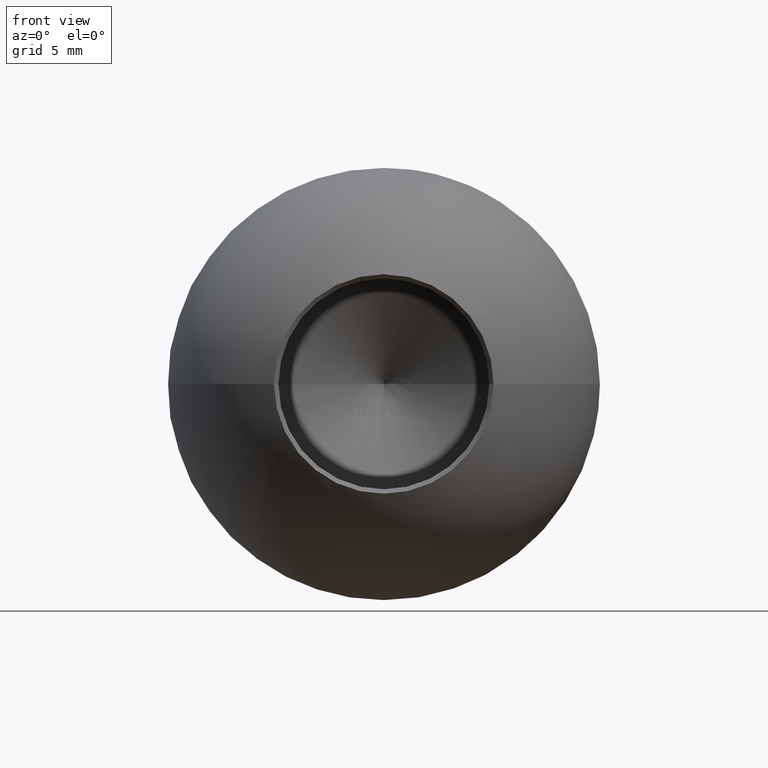
[diagram: clean part render]
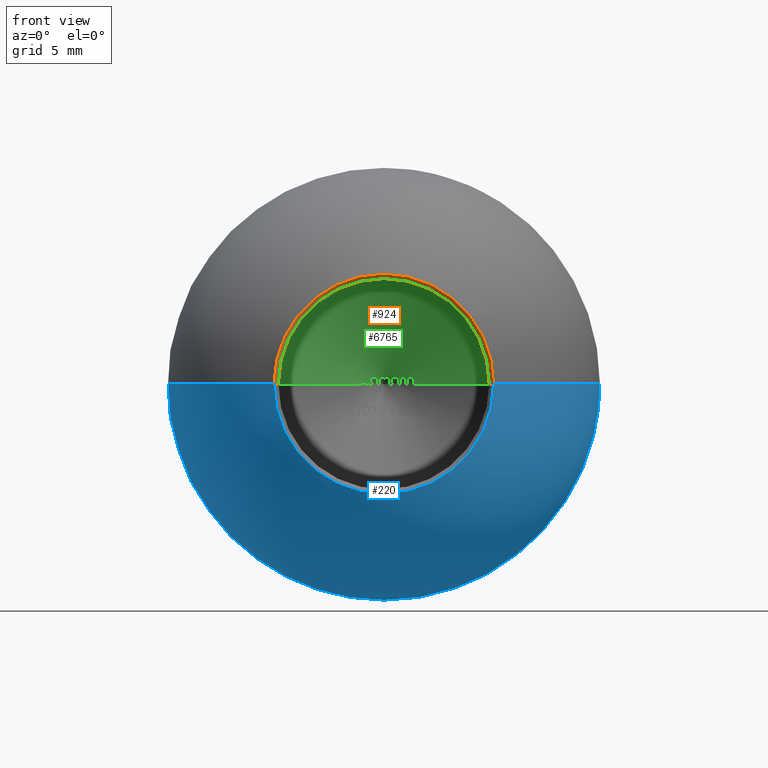
[diagram: same view with three faces highlighted in distinct colors, each labeled with its STEP entity id]
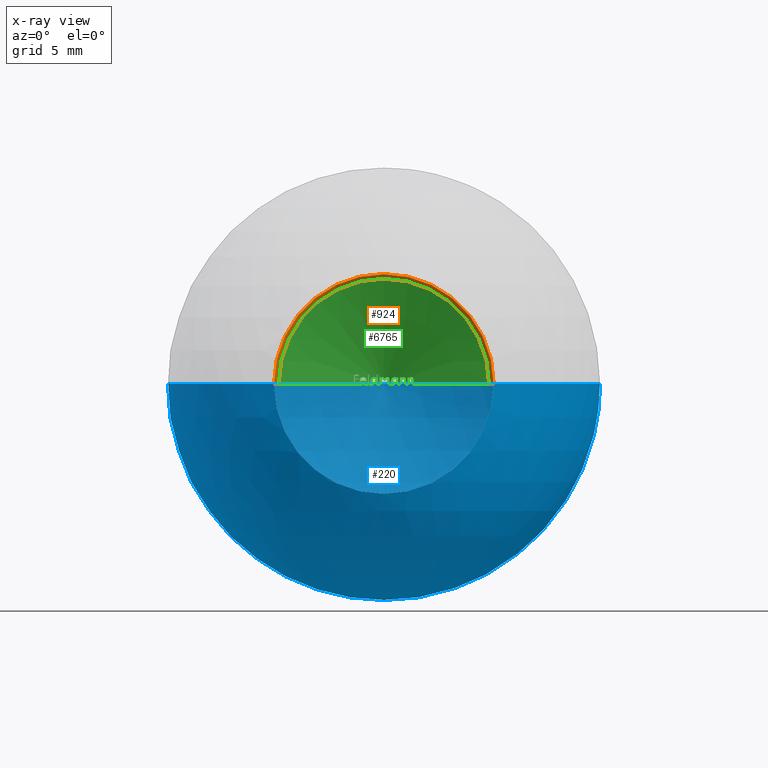
[diagram: x-ray of the same camera — body ghosted, the three highlighted faces saturated]
A machine part, front view with three faces highlighted in distinct colors.
The next image is the same camera in x-ray (body ghosted, the three faces saturated) — at least one of them is partly hidden behind the body in this view.
Their STEP definitions:

[orange] entity #924 — the highlighted conical surface has half-angle 45 deg.
#670 = CONICAL_SURFACE ( 'NONE', #2727, 6.100000000000003200, 0.7853981633974291800 ) ;
#694 = DIRECTION ( 'NONE',  ( -3.795949471969979100E-019, -1.000000000000000000, -0.0000000000000000000 ) ) ;
#699 = ORIENTED_EDGE ( 'NONE', *, *, #1604, .T. ) ;
#718 = EDGE_CURVE ( 'NONE', #8290, #7481, #6293, .T. ) ;
#767 = DIRECTION ( 'NONE',  ( 1.000000000000000000, 0.0000000000000000000, 0.0000000000000000000 ) ) ;
#924 = ADVANCED_FACE ( 'NONE', ( #9096 ), #670, .F. ) ;
#1001 = CARTESIAN_POINT ( 'NONE',  ( -8.737122991352304000E-018, -10.51696336020513400, 0.0000000000000000000 ) ) ;
#1115 = AXIS2_PLACEMENT_3D ( 'NONE', #3315, #694, #4141 ) ;
#1604 = EDGE_CURVE ( 'NONE', #2724, #8290, #7550, .T. ) ;
#2455 = CARTESIAN_POINT ( 'NONE',  ( 6.350000000000000500, -10.76696336020514100, 0.0000000000000000000 ) ) ;
#2479 = ORIENTED_EDGE ( 'NONE', *, *, #718, .T. ) ;
#2662 = VECTOR ( 'NONE', #7791, 1000.000000000000000 ) ;
#2724 = VERTEX_POINT ( 'NONE', #8639 ) ;
#2727 = AXIS2_PLACEMENT_3D ( 'NONE', #1001, #3721, #4612 ) ;
#2888 = CIRCLE ( 'NONE', #7956, 6.100000000000003200 ) ;
#2912 = LINE ( 'NONE', #9419, #3750 ) ;
#3315 = CARTESIAN_POINT ( 'NONE',  ( -8.832021728151556100E-018, -10.76696336020514100, 0.0000000000000000000 ) ) ;
#3574 = EDGE_CURVE ( 'NONE', #9225, #7481, #2912, .T. ) ;
#3721 = DIRECTION ( 'NONE',  ( -3.795949471969979100E-019, -1.000000000000000000, -0.0000000000000000000 ) ) ;
#3750 = VECTOR ( 'NONE', #8340, 1000.000000000000000 ) ;
#4141 = DIRECTION ( 'NONE',  ( 1.000000000000000000, 0.0000000000000000000, 0.0000000000000000000 ) ) ;
#4370 = CARTESIAN_POINT ( 'NONE',  ( -8.737122991352304000E-018, -10.51696336020513400, 0.0000000000000000000 ) ) ;
#4612 = DIRECTION ( 'NONE',  ( 1.000000000000000000, 0.0000000000000000000, 0.0000000000000000000 ) ) ;
#5093 = CARTESIAN_POINT ( 'NONE',  ( -6.350000000000000500, -10.76696336020514100, 7.776507174585693100E-016 ) ) ;
#6293 = CIRCLE ( 'NONE', #1115, 6.350000000000000500 ) ;
#6679 = EDGE_CURVE ( 'NONE', #2724, #9225, #2888, .T. ) ;
#6864 = CARTESIAN_POINT ( 'NONE',  ( -6.100000000000003200, -10.51696336020513400, 7.623426324692276200E-016 ) ) ;
#6899 = CARTESIAN_POINT ( 'NONE',  ( 6.100000000000003200, -10.51696336020513400, 0.0000000000000000000 ) ) ;
#7481 = VERTEX_POINT ( 'NONE', #5093 ) ;
#7550 = LINE ( 'NONE', #6899, #2662 ) ;
#7791 = DIRECTION ( 'NONE',  ( 0.7071067811865340300, -0.7071067811865610100, 0.0000000000000000000 ) ) ;
#7956 = AXIS2_PLACEMENT_3D ( 'NONE', #4370, #11650, #767 ) ;
#8290 = VERTEX_POINT ( 'NONE', #2455 ) ;
#8340 = DIRECTION ( 'NONE',  ( -0.7071067811865340300, -0.7071067811865610100, 8.659560562354767700E-017 ) ) ;
#8639 = CARTESIAN_POINT ( 'NONE',  ( 6.100000000000003200, -10.51696336020513400, 0.0000000000000000000 ) ) ;
#8768 = ORIENTED_EDGE ( 'NONE', *, *, #3574, .F. ) ;
#9096 = FACE_OUTER_BOUND ( 'NONE', #11113, .T. ) ;
#9225 = VERTEX_POINT ( 'NONE', #6864 ) ;
#9331 = ORIENTED_EDGE ( 'NONE', *, *, #6679, .F. ) ;
#9419 = CARTESIAN_POINT ( 'NONE',  ( -6.100000000000003200, -10.51696336020513400, 7.470345474798858200E-016 ) ) ;
#11113 = EDGE_LOOP ( 'NONE', ( #8768, #9331, #699, #2479 ) ) ;
#11650 = DIRECTION ( 'NONE',  ( -3.795949471969979100E-019, -1.000000000000000000, -0.0000000000000000000 ) ) ;

[blue] entity #220 — the highlighted spherical surface has radius 12.5 mm.
#84 = EDGE_LOOP ( 'NONE', ( #5039, #10775, #1531 ) ) ;
#220 = ADVANCED_FACE ( 'NONE', ( #8535 ), #10543, .T. ) ;
#1531 = ORIENTED_EDGE ( 'NONE', *, *, #11204, .F. ) ;
#1739 = CIRCLE ( 'NONE', #6796, 6.350000000000000500 ) ;
#2455 = CARTESIAN_POINT ( 'NONE',  ( 6.350000000000000500, -10.76696336020514100, 0.0000000000000000000 ) ) ;
#2478 = DIRECTION ( 'NONE',  ( 0.0000000000000000000, 0.0000000000000000000, -1.000000000000000000 ) ) ;
#2480 = CIRCLE ( 'NONE', #7596, 12.50000000000000000 ) ;
#2573 = AXIS2_PLACEMENT_3D ( 'NONE', #2622, #8854, #10701 ) ;
#2622 = CARTESIAN_POINT ( 'NONE',  ( 0.0000000000000000000, 0.0000000000000000000, 0.0000000000000000000 ) ) ;
#3003 = EDGE_CURVE ( 'NONE', #3851, #7481, #7112, .T. ) ;
#3358 = DIRECTION ( 'NONE',  ( -1.000000000000000000, 0.0000000000000000000, 0.0000000000000000000 ) ) ;
#3851 = VERTEX_POINT ( 'NONE', #7055 ) ;
#3940 = CARTESIAN_POINT ( 'NONE',  ( 0.0000000000000000000, 0.0000000000000000000, 0.0000000000000000000 ) ) ;
#5039 = ORIENTED_EDGE ( 'NONE', *, *, #3003, .F. ) ;
#5093 = CARTESIAN_POINT ( 'NONE',  ( -6.350000000000000500, -10.76696336020514100, 7.776507174585693100E-016 ) ) ;
#5316 = DIRECTION ( 'NONE',  ( 1.000000000000000000, 0.0000000000000000000, 0.0000000000000000000 ) ) ;
#6221 = EDGE_CURVE ( 'NONE', #3851, #8290, #2480, .T. ) ;
#6796 = AXIS2_PLACEMENT_3D ( 'NONE', #10738, #7105, #5316 ) ;
#7055 = CARTESIAN_POINT ( 'NONE',  ( 7.701491863070581600E-016, 12.50000000000000000, 0.0000000000000000000 ) ) ;
#7105 = DIRECTION ( 'NONE',  ( -3.795949471969979100E-019, -1.000000000000000000, -0.0000000000000000000 ) ) ;
#7112 = CIRCLE ( 'NONE', #7436, 12.50000000000000000 ) ;
#7436 = AXIS2_PLACEMENT_3D ( 'NONE', #3940, #11090, #9226 ) ;
#7481 = VERTEX_POINT ( 'NONE', #5093 ) ;
#7596 = AXIS2_PLACEMENT_3D ( 'NONE', #11556, #2478, #3358 ) ;
#8290 = VERTEX_POINT ( 'NONE', #2455 ) ;
#8535 = FACE_OUTER_BOUND ( 'NONE', #84, .T. ) ;
#8854 = DIRECTION ( 'NONE',  ( -0.0000000000000000000, 0.0000000000000000000, 1.000000000000000000 ) ) ;
#9226 = DIRECTION ( 'NONE',  ( 1.000000000000000000, 0.0000000000000000000, -1.224646799147353200E-016 ) ) ;
#10543 = SPHERICAL_SURFACE ( 'NONE', #2573, 12.50000000000000000 ) ;
#10701 = DIRECTION ( 'NONE',  ( 1.000000000000000000, -3.795949471969979500E-019, 0.0000000000000000000 ) ) ;
#10738 = CARTESIAN_POINT ( 'NONE',  ( -8.832021728151556100E-018, -10.76696336020514100, 0.0000000000000000000 ) ) ;
#10775 = ORIENTED_EDGE ( 'NONE', *, *, #6221, .T. ) ;
#11090 = DIRECTION ( 'NONE',  ( 1.224646799147353200E-016, -4.648697370573120600E-035, 1.000000000000000000 ) ) ;
#11204 = EDGE_CURVE ( 'NONE', #7481, #8290, #1739, .T. ) ;
#11556 = CARTESIAN_POINT ( 'NONE',  ( 0.0000000000000000000, 0.0000000000000000000, 0.0000000000000000000 ) ) ;

[green] entity #6765 — the highlighted conical surface has half-angle 59 deg.
#4 = CARTESIAN_POINT ( 'NONE',  ( 0.5052355336211188400, 7.027113281982459500, 0.3554560686072441600 ) ) ;
#44 = ORIENTED_EDGE ( 'NONE', *, *, #8790, .T. ) ;
#58 = EDGE_CURVE ( 'NONE', #5717, #8858, #9209, .T. ) ;
#59 = CARTESIAN_POINT ( 'NONE',  ( 0.1981194911858959500, 7.133580115515504100, 0.3934829059829074700 ) ) ;
#67 = CARTESIAN_POINT ( 'NONE',  ( -1.383794421931995300, 6.562239438052860600, 0.1468272505587847100 ) ) ;
#76 = CARTESIAN_POINT ( 'NONE',  ( -1.028310549493973000, 6.777067649863662200, 0.1073516188627683500 ) ) ;
#99 = DIRECTION ( 'NONE',  ( -3.795949471969979100E-019, -1.000000000000000000, -0.0000000000000000000 ) ) ;
#126 = EDGE_CURVE ( 'NONE', #3817, #8397, #11661, .T. ) ;
#135 = CARTESIAN_POINT ( 'NONE',  ( -0.5284715406823503600, 7.002870024305243700, 0.3925497902794605200 ) ) ;
#150 = CARTESIAN_POINT ( 'NONE',  ( 0.3290331196581181000, 7.185648586588827800, 0.1421291766276390200 ) ) ;
#164 = CARTESIAN_POINT ( 'NONE',  ( -1.455208333333333900, 6.467893248463349600, 0.5291666666666681200 ) ) ;
#186 = VERTEX_POINT ( 'NONE', #10596 ) ;
#233 = CARTESIAN_POINT ( 'NONE',  ( -1.455208333333333900, 6.506309063117123900, 0.2939743787741444000 ) ) ;
#258 = ORIENTED_EDGE ( 'NONE', *, *, #11656, .T. ) ;
#259 = EDGE_CURVE ( 'NONE', #7989, #5484, #10460, .T. ) ;
#287 = CARTESIAN_POINT ( 'NONE',  ( 0.7835737179487165500, 6.890815161391957500, 0.3151467347756424800 ) ) ;
#292 = CARTESIAN_POINT ( 'NONE',  ( 1.434855769230768000, 6.512342078297197500, 0.3401962945938264400 ) ) ;
#308 = VECTOR ( 'NONE', #612, 1000.000000000000000 ) ;
#328 = CARTESIAN_POINT ( 'NONE',  ( 0.7835737179487165500, 6.885455076627764900, 0.3390536097852688800 ) ) ;
#335 = ORIENTED_EDGE ( 'NONE', *, *, #2181, .T. ) ;
#355 = B_SPLINE_CURVE_WITH_KNOTS ( 'NONE', 3,
 ( #3669, #7159, #2635, #6213 ),
 .UNSPECIFIED., .F., .F.,
 ( 4, 4 ),
 ( 0.0004269780470401967700, 0.0005027888015238845900 ),
 .UNSPECIFIED. ) ;
#373 = ORIENTED_EDGE ( 'NONE', *, *, #7052, .T. ) ;
#384 = B_SPLINE_CURVE_WITH_KNOTS ( 'NONE', 3,
 ( #11338, #3387, #1485, #2397 ),
 .UNSPECIFIED., .F., .F.,
 ( 4, 4 ),
 ( 0.0004564707604004478500, 0.0005104524866794638700 ),
 .UNSPECIFIED. ) ;
#388 = CARTESIAN_POINT ( 'NONE',  ( -1.055599559354143800, 6.731720509021737800, 0.3415754201716722500 ) ) ;
#393 = CARTESIAN_POINT ( 'NONE',  ( 0.8310630341878052500, 6.847522460934470700, 0.3866987179487194100 ) ) ;
#415 = CARTESIAN_POINT ( 'NONE',  ( -1.339877136752137800, 6.585718645836701400, 0.1831730769230783800 ) ) ;
#419 = EDGE_CURVE ( 'NONE', #3446, #9024, #1947, .T. ) ;
#437 = B_SPLINE_CURVE_WITH_KNOTS ( 'NONE', 3,
 ( #1177, #5668, #6583, #6906 ),
 .UNSPECIFIED., .F., .F.,
 ( 4, 4 ),
 ( 0.0008173429544300354200, 0.001012761761067025000 ),
 .UNSPECIFIED. ) ;
#451 = CARTESIAN_POINT ( 'NONE',  ( 0.2195271746538751700, 7.128223213144956100, 0.3926857945464082300 ) ) ;
#452 = CARTESIAN_POINT ( 'NONE',  ( 0.02892610088501207000, 7.185161961475510700, 0.3536798658705478900 ) ) ;
#463 = ORIENTED_EDGE ( 'NONE', *, *, #4854, .T. ) ;
#522 = ORIENTED_EDGE ( 'NONE', *, *, #10832, .T. ) ;
#567 = CARTESIAN_POINT ( 'NONE',  ( 0.9396100427350405600, 6.787768581146925100, 0.3866987179487194100 ) ) ;
#568 = CARTESIAN_POINT ( 'NONE',  ( -0.1339977726762332800, 7.156302848039528500, 0.3798453727161570900 ) ) ;
#612 = DIRECTION ( 'NONE',  ( -0.8571673007021136700, -0.5150380749100517100, 1.049727191138620400E-016 ) ) ;
#628 = ORIENTED_EDGE ( 'NONE', *, *, #6589, .T. ) ;
#633 = EDGE_CURVE ( 'NONE', #186, #10616, #3090, .T. ) ;
#653 = CARTESIAN_POINT ( 'NONE',  ( -1.356485598362129600, 6.563225679577753300, 0.3030847161020858700 ) ) ;
#706 = CARTESIAN_POINT ( 'NONE',  ( 1.277971374902703100, 6.616466821485333000, 0.2457841501025708200 ) ) ;
#731 = CARTESIAN_POINT ( 'NONE',  ( -1.665518162393163000, 6.374117875059544900, 0.3663698348841427600 ) ) ;
#759 = DIRECTION ( 'NONE',  ( -3.795949471969979100E-019, -1.000000000000000000, -0.0000000000000000000 ) ) ;
#760 = EDGE_CURVE ( 'NONE', #7293, #6264, #9431, .T. ) ;
#770 = CARTESIAN_POINT ( 'NONE',  ( -1.665518162393163000, 6.397542141805760500, 1.500192328955508100E-015 ) ) ;
#774 = CARTESIAN_POINT ( 'NONE',  ( -1.665518162393163000, 6.380126352693769000, 0.3120726495726510700 ) ) ;
#832 = CARTESIAN_POINT ( 'NONE',  ( -1.665518162393163000, 6.385624808247485800, 0.2577991452991468300 ) ) ;
#836 = CARTESIAN_POINT ( 'NONE',  ( 0.7404582119147455900, 6.903055662955305900, 0.3628013175215683600 ) ) ;
#842 = CARTESIAN_POINT ( 'NONE',  ( -0.2476228632478647000, 7.122378847666433400, 0.3866987179487192900 ) ) ;
#865 = CARTESIAN_POINT ( 'NONE',  ( -0.8581997863247871100, 6.816175773682059200, 0.4555117191586643400 ) ) ;
#903 = CARTESIAN_POINT ( 'NONE',  ( -0.7625839456207317300, 6.928925671282955900, 0.1708018247460700300 ) ) ;
#915 = CARTESIAN_POINT ( 'NONE',  ( -0.4440439163917860900, 7.055644729136660400, 0.3578262262275225300 ) ) ;
#927 = LINE ( 'NONE', #8407, #11353 ) ;
#933 = ORIENTED_EDGE ( 'NONE', *, *, #5142, .F. ) ;
#966 = CARTESIAN_POINT ( 'NONE',  ( -0.1574265256352358800, 7.158730910453081200, 0.3663451991440767600 ) ) ;
#980 = CARTESIAN_POINT ( 'NONE',  ( -1.640536621851824700, 6.400455942887536100, 0.2577991452991468300 ) ) ;
#1016 = CARTESIAN_POINT ( 'NONE',  ( -0.7632211538461550800, 6.925053253679052100, 0.1944093883547023400 ) ) ;
#1022 = CARTESIAN_POINT ( 'NONE',  ( -0.4036591880341893800, 7.062950233896177800, 0.3903675061662679200 ) ) ;
#1050 = CARTESIAN_POINT ( 'NONE',  ( 1.553256214749902500, 6.435658228704918200, 0.3925549310040419800 ) ) ;
#1056 = CARTESIAN_POINT ( 'NONE',  ( -0.3561698717948730800, 7.008227294228140300, 0.5427350427350441400 ) ) ;
#1084 = CARTESIAN_POINT ( 'NONE',  ( -1.260190480245050500, 6.640445045714501200, 0.05255317615724616800 ) ) ;
#1085 = CARTESIAN_POINT ( 'NONE',  ( 0.9396100427350405600, 6.816634221958944200, 0.2604696590069157100 ) ) ;
#1101 = DIRECTION ( 'NONE',  ( 0.8571673007021136700, -0.5150380749100517100, 0.0000000000000000000 ) ) ;
#1113 = EDGE_CURVE ( 'NONE', #7969, #7636, #10793, .T. ) ;
#1114 = CARTESIAN_POINT ( 'NONE',  ( -1.286778537504764200, 6.625111867266441300, 0.009729627450627087100 ) ) ;
#1177 = CARTESIAN_POINT ( 'NONE',  ( 1.278819444444442300, 6.620786033399514100, 0.1974834735576937700 ) ) ;
#1179 = CARTESIAN_POINT ( 'NONE',  ( -1.132021955750402500, 6.679293021332745700, 0.3878204280992198500 ) ) ;
#1186 = B_SPLINE_CURVE_WITH_KNOTS ( 'NONE', 3,
 ( #5568, #865, #4440, #3546, #11643, #8038 ),
 .UNSPECIFIED., .F., .F.,
 ( 4, 2, 4 ),
 ( 0.003389297319493676600, 0.003665057533048981000, 0.003940817746604285400 ),
 .UNSPECIFIED. ) ;
#1188 = CONICAL_SURFACE ( 'NONE', #11663, 1664.279482350529000, 1.029744258676657400 ) ;
#1199 = VERTEX_POINT ( 'NONE', #1808 ) ;
#1200 = EDGE_CURVE ( 'NONE', #6635, #10266, #8826, .T. ) ;
#1203 = VERTEX_POINT ( 'NONE', #3526 ) ;
#1244 = CARTESIAN_POINT ( 'NONE',  ( 1.726575854700853400, 6.360854979009367600, 1.500192328955508100E-015 ) ) ;
#1258 = B_SPLINE_CURVE_WITH_KNOTS ( 'NONE', 3,
 ( #1372, #10323, #7516, #1244 ),
 .UNSPECIFIED., .F., .F.,
 ( 4, 4 ),
 ( 0.001118325528164309500, 0.001313442525816564700 ),
 .UNSPECIFIED. ) ;
#1289 = CARTESIAN_POINT ( 'NONE',  ( -0.3561698717948730800, 7.184277966217322000, 1.500192328955508100E-015 ) ) ;
#1295 = B_SPLINE_CURVE_WITH_KNOTS ( 'NONE', 3,
 ( #4923, #11151, #292, #3924 ),
 .UNSPECIFIED., .F., .F.,
 ( 4, 4 ),
 ( 0.001306569707326566300, 0.001376212966071169600 ),
 .UNSPECIFIED. ) ;
#1322 = ORIENTED_EDGE ( 'NONE', *, *, #8895, .T. ) ;
#1348 = VERTEX_POINT ( 'NONE', #10082 ) ;
#1351 = EDGE_CURVE ( 'NONE', #1929, #7968, #5905, .T. ) ;
#1372 = CARTESIAN_POINT ( 'NONE',  ( 1.726575854700853400, 6.354090940015741900, 0.1974834735576937700 ) ) ;
#1373 = B_SPLINE_CURVE_WITH_KNOTS ( 'NONE', 3,
 ( #4354, #10050, #5435, #3697 ),
 .UNSPECIFIED., .F., .F.,
 ( 4, 4 ),
 ( 0.0006645915399712453100, 0.001192905057817751400 ),
 .UNSPECIFIED. ) ;
#1378 = CARTESIAN_POINT ( 'NONE',  ( -0.3561698717948730800, 7.008227294228140300, 0.5427350427350441400 ) ) ;
#1394 = DIRECTION ( 'NONE',  ( -0.8571673007021136700, -0.5150380749100517100, 1.049727191138620400E-016 ) ) ;
#1405 = VERTEX_POINT ( 'NONE', #2767 ) ;
#1430 = CARTESIAN_POINT ( 'NONE',  ( -1.455208333333333900, 6.471606403678408400, 0.5110837011094711000 ) ) ;
#1448 = CARTESIAN_POINT ( 'NONE',  ( -0.7624552855048846200, 6.921467237951234500, 0.2215941953324588000 ) ) ;
#1458 = ORIENTED_EDGE ( 'NONE', *, *, #2856, .T. ) ;
#1485 = CARTESIAN_POINT ( 'NONE',  ( 0.8152512996039360500, 6.856136274202364200, 0.3866987179487194100 ) ) ;
#1495 = CARTESIAN_POINT ( 'NONE',  ( 0.03691465003644361900, 7.191291161992429800, 0.3425989698512771900 ) ) ;
#1501 = B_SPLINE_CURVE_WITH_KNOTS ( 'NONE', 3,
 ( #4582, #1932, #76, #2802 ),
 .UNSPECIFIED., .F., .F.,
 ( 4, 4 ),
 ( 2.589674448291843100E-007, 5.484452315193692400E-005 ),
 .UNSPECIFIED. ) ;
#1507 = CARTESIAN_POINT ( 'NONE',  ( -1.093929285720573400, 6.739587156042614600, 0.07284698006150415500 ) ) ;
#1532 = CARTESIAN_POINT ( 'NONE',  ( -1.936584698584708900E-018, 7.398286415862954400, 0.0000000000000000000 ) ) ;
#1570 = CARTESIAN_POINT ( 'NONE',  ( -0.9056891025641035100, 6.854093501049775700, 1.500192328955508100E-015 ) ) ;
#1577 = CARTESIAN_POINT ( 'NONE',  ( 1.387366452991451800, 6.564672550100468100, 0.1289024909808628400 ) ) ;
#1584 = CARTESIAN_POINT ( 'NONE',  ( -1.035966713408120700, 6.747259404961123900, 0.3173727964743604500 ) ) ;
#1590 = LINE ( 'NONE', #7846, #308 ) ;
#1600 = CARTESIAN_POINT ( 'NONE',  ( 0.9870993589743569700, 6.761288842363845800, 0.3866987179487194100 ) ) ;
#1603 = CARTESIAN_POINT ( 'NONE',  ( -0.2001335470085484600, 7.136660541596352700, 0.3866987179487194100 ) ) ;
#1606 = LINE ( 'NONE', #7973, #7330 ) ;
#1681 = ORIENTED_EDGE ( 'NONE', *, *, #8119, .T. ) ;
#1715 = CARTESIAN_POINT ( 'NONE',  ( 0.6849315715523681700, 6.925336939958401500, 0.3886134361682455100 ) ) ;
#1716 = EDGE_CURVE ( 'NONE', #2448, #1929, #355, .T. ) ;
#1717 = EDGE_CURVE ( 'NONE', #3150, #2456, #9052, .T. ) ;
#1729 = CARTESIAN_POINT ( 'NONE',  ( 0.1665018309098093000, 7.142794062606728100, 0.3922337965753890900 ) ) ;
#1738 = EDGE_CURVE ( 'NONE', #1348, #5502, #2526, .T. ) ;
#1768 = CARTESIAN_POINT ( 'NONE',  ( 1.710145773918358500, 6.353151277308385600, 0.3183697774840302800 ) ) ;
#1784 = CARTESIAN_POINT ( 'NONE',  ( -1.665518162393163000, 6.357656490030636000, 0.4748931623931638700 ) ) ;
#1797 = B_SPLINE_CURVE_WITH_KNOTS ( 'NONE', 3,
 ( #8881, #1891, #5388, #9804, #2683, #1768, #9842, #5344, #8921, #11658 ),
 .UNSPECIFIED., .F., .F.,
 ( 4, 2, 2, 2, 4 ),
 ( 0.0000000000000000000, 7.238617317193192100E-005, 0.0001447723463438638400, 0.0002171585195157957600, 0.0002895446926877276800 ),
 .UNSPECIFIED. ) ;
#1808 = CARTESIAN_POINT ( 'NONE',  ( -0.8581997863247872200, 6.788163359488390100, 0.5427350427350441400 ) ) ;
#1811 = CARTESIAN_POINT ( 'NONE',  ( -0.4036591880341893800, 7.091789892953755700, 0.3118606436965827300 ) ) ;
#1821 = CARTESIAN_POINT ( 'NONE',  ( -1.455208333333333900, 6.510294168091587800, 0.2577991452991468300 ) ) ;
#1830 = CARTESIAN_POINT ( 'NONE',  ( 0.4520611773437099300, 7.072548377715071900, 0.2995832499472563800 ) ) ;
#1838 = EDGE_CURVE ( 'NONE', #3042, #8387, #6457, .T. ) ;
#1840 = CARTESIAN_POINT ( 'NONE',  ( -1.322011995031400000, 6.603924338640515800, 0.03412153390940569900 ) ) ;
#1843 = B_SPLINE_CURVE_WITH_KNOTS ( 'NONE', 3,
 ( #7697, #10515, #4209, #7811 ),
 .UNSPECIFIED., .F., .F.,
 ( 4, 4 ),
 ( 0.001146643008344522000, 0.001199971740763549000 ),
 .UNSPECIFIED. ) ;
#1875 = CARTESIAN_POINT ( 'NONE',  ( -0.5601195245726509100, 6.986987478013986700, 0.3934829059829074700 ) ) ;
#1891 = CARTESIAN_POINT ( 'NONE',  ( 1.603071530940850100, 6.406582925856989500, 0.3927497666173403500 ) ) ;
#1899 = VERTEX_POINT ( 'NONE', #7611 ) ;
#1919 = ORIENTED_EDGE ( 'NONE', *, *, #3743, .T. ) ;
#1925 = CARTESIAN_POINT ( 'NONE',  ( -1.386712833582677900, 6.558973090025499900, 0.1694951814833218800 ) ) ;
#1927 = CARTESIAN_POINT ( 'NONE',  ( -0.1765711993143913300, 7.163390644832247700, 0.3487844694389349300 ) ) ;
#1929 = VERTEX_POINT ( 'NONE', #8801 ) ;
#1932 = CARTESIAN_POINT ( 'NONE',  ( -1.042373142122130300, 6.768192016799487100, 0.1147362466499163400 ) ) ;
#1935 = CARTESIAN_POINT ( 'NONE',  ( -1.244739828179915600, 6.649847110737218800, 0.04667709270721038400 ) ) ;
#1947 = B_SPLINE_CURVE_WITH_KNOTS ( 'NONE', 3,
 ( #8346, #6430, #10051, #1056 ),
 .UNSPECIFIED., .F., .F.,
 ( 4, 4 ),
 ( 0.0006826558321638531300, 0.0007326498567803563400 ),
 .UNSPECIFIED. ) ;
#1949 = CARTESIAN_POINT ( 'NONE',  ( 0.4546817830302646900, 7.120645919003804300, 0.08441678584333045500 ) ) ;
#1967 = CARTESIAN_POINT ( 'NONE',  ( 0.3290331196581181000, 7.200583371904617300, 0.07118731540104109000 ) ) ;
#1970 = VERTEX_POINT ( 'NONE', #8129 ) ;
#2000 = CARTESIAN_POINT ( 'NONE',  ( -0.1721437568219758000, 7.162082807791110300, 0.3534654816710283100 ) ) ;
#2013 = EDGE_CURVE ( 'NONE', #10250, #8994, #1797, .T. ) ;
#2029 = CARTESIAN_POINT ( 'NONE',  ( 0.5718419609183854600, 7.054689101253491600, -1.718681995450934200E-012 ) ) ;
#2031 = CARTESIAN_POINT ( 'NONE',  ( -1.525361381278820900, 6.462813718242589500, 0.3120726495726510700 ) ) ;
#2052 = CARTESIAN_POINT ( 'NONE',  ( -1.274064773147456800, 6.631864835804856600, 0.06132297238099603000 ) ) ;
#2078 = ORIENTED_EDGE ( 'NONE', *, *, #7921, .T. ) ;
#2111 = CARTESIAN_POINT ( 'NONE',  ( 1.726575854700853400, 6.354090940015741900, 0.1974834735576937700 ) ) ;
#2112 = CARTESIAN_POINT ( 'NONE',  ( -1.191685029380342900, 6.644226206773288900, 0.3934829059829074700 ) ) ;
#2134 = VERTEX_POINT ( 'NONE', #6413 ) ;
#2181 = EDGE_CURVE ( 'NONE', #7616, #11245, #1295, .T. ) ;
#2194 = ORIENTED_EDGE ( 'NONE', *, *, #5217, .T. ) ;
#2218 = CARTESIAN_POINT ( 'NONE',  ( -1.035966713408120700, 6.747259404961123900, 0.3173727964743604500 ) ) ;
#2231 = CARTESIAN_POINT ( 'NONE',  ( -1.665518162393163000, 6.397542141805766700, 0.08578117235620366700 ) ) ;
#2237 = CARTESIAN_POINT ( 'NONE',  ( -0.7189649266904827300, 6.925475782084689900, 0.3207850584851978900 ) ) ;
#2268 = EDGE_CURVE ( 'NONE', #7085, #2271, #8033, .T. ) ;
#2271 = VERTEX_POINT ( 'NONE', #4762 ) ;
#2292 = B_SPLINE_CURVE_WITH_KNOTS ( 'NONE', 3,
 ( #5693, #451, #6853, #7745, #4962, #6724, #6815, #6770 ),
 .UNSPECIFIED., .F., .F.,
 ( 4, 2, 2, 4 ),
 ( 0.0000000000000000000, 6.573407523536819200E-005, 0.0001314681504707363800, 0.0002629363009414729300 ),
 .UNSPECIFIED. ) ;
#2318 = CARTESIAN_POINT ( 'NONE',  ( -0.2476228632478647000, 7.249499588966466800, 1.500192328955508100E-015 ) ) ;
#2320 = CARTESIAN_POINT ( 'NONE',  ( -0.1076628242989596400, 7.156002264354103900, 0.3885897239415658800 ) ) ;
#2326 = CARTESIAN_POINT ( 'NONE',  ( 0.05628756009615237100, 7.214827138706767500, 0.3000943175747878300 ) ) ;
#2328 = CARTESIAN_POINT ( 'NONE',  ( -0.3561698717948731400, 7.092594946491861000, 0.3700738316440982400 ) ) ;
#2332 = CARTESIAN_POINT ( 'NONE',  ( -1.386734801842283600, 6.555146559859611700, 0.2157239969728518800 ) ) ;
#2343 = EDGE_CURVE ( 'NONE', #2686, #10439, #11586, .T. ) ;
#2370 = CARTESIAN_POINT ( 'NONE',  ( -0.06678185096153996200, 7.158477069081816200, 0.3934829059829075300 ) ) ;
#2376 = CARTESIAN_POINT ( 'NONE',  ( -1.342845219017095000, 6.568634786242006900, 0.3214009081196596000 ) ) ;
#2379 = B_SPLINE_CURVE_WITH_KNOTS ( 'NONE', 3,
 ( #9262, #233, #10926, #9221 ),
 .UNSPECIFIED., .F., .F.,
 ( 4, 4 ),
 ( 0.001226925836837117000, 0.001280875296130079100 ),
 .UNSPECIFIED. ) ;
#2396 = VECTOR ( 'NONE', #1101, 1000.000000000000000 ) ;
#2397 = CARTESIAN_POINT ( 'NONE',  ( 0.8310630341878052500, 6.847522460934470700, 0.3866987179487194100 ) ) ;
#2410 = CARTESIAN_POINT ( 'NONE',  ( 0.01864613191345409700, 7.180118185136538300, 0.3626138209287980100 ) ) ;
#2417 = ORIENTED_EDGE ( 'NONE', *, *, #7337, .T. ) ;
#2423 = CARTESIAN_POINT ( 'NONE',  ( -1.455208333333333900, 6.475153099272774600, 0.4929926354261307000 ) ) ;
#2431 = CARTESIAN_POINT ( 'NONE',  ( -0.9938835470085479700, 6.791043439216088600, 0.1831730769230783800 ) ) ;
#2448 = VERTEX_POINT ( 'NONE', #1603 ) ;
#2456 = VERTEX_POINT ( 'NONE', #5994 ) ;
#2498 = EDGE_CURVE ( 'NONE', #10976, #2134, #5868, .T. ) ;
#2509 = CARTESIAN_POINT ( 'NONE',  ( -1.056425280448718900, 6.759295360287147500, 0.1221153846153861000 ) ) ;
#2526 = LINE ( 'NONE', #6479, #2396 ) ;
#2543 = ORIENTED_EDGE ( 'NONE', *, *, #2707, .T. ) ;
#2552 = DIRECTION ( 'NONE',  ( 0.8571673007021136700, -0.5150380749100517100, 0.0000000000000000000 ) ) ;
#2609 = EDGE_CURVE ( 'NONE', #8418, #10616, #7035, .T. ) ;
#2618 = CARTESIAN_POINT ( 'NONE',  ( -0.4036591880341893800, 6.991870908226687200, 0.5427350427350441400 ) ) ;
#2629 = VERTEX_POINT ( 'NONE', #10985 ) ;
#2635 = CARTESIAN_POINT ( 'NONE',  ( -0.2001335470085484600, 7.160297581444911700, 0.3420069037691037000 ) ) ;
#2661 = CARTESIAN_POINT ( 'NONE',  ( 1.134231436965809700, 6.676925840417423400, 0.3934829059829074700 ) ) ;
#2666 = CARTESIAN_POINT ( 'NONE',  ( 0.6271133814102550800, 6.953446614523734600, 0.3934829059829074700 ) ) ;
#2683 = CARTESIAN_POINT ( 'NONE',  ( 1.682707935524442800, 6.364856062882661400, 0.3564608434965972400 ) ) ;
#2686 = VERTEX_POINT ( 'NONE', #8710 ) ;
#2693 = VERTEX_POINT ( 'NONE', #6605 ) ;
#2694 = CARTESIAN_POINT ( 'NONE',  ( -1.339877136752137800, 6.585718645836701400, 0.1831730769230783800 ) ) ;
#2707 = EDGE_CURVE ( 'NONE', #7968, #3609, #4589, .T. ) ;
#2767 = CARTESIAN_POINT ( 'NONE',  ( -1.198787226228633400, 6.677567259969937800, 0.04070512820512969800 ) ) ;
#2771 = CARTESIAN_POINT ( 'NONE',  ( -0.6153909450648285000, 7.028522231654684500, -1.685239017099719400E-012 ) ) ;
#2780 = CARTESIAN_POINT ( 'NONE',  ( -0.6914595132608636300, 6.982710137065877700, 0.03466187343251609500 ) ) ;
#2802 = CARTESIAN_POINT ( 'NONE',  ( -1.014236111111112000, 6.785919220991226000, 0.09996077056624080900 ) ) ;
#2806 = CARTESIAN_POINT ( 'NONE',  ( 0.4240117521367507400, 7.118011519035854400, 0.1944093883547023400 ) ) ;
#2826 = ORIENTED_EDGE ( 'NONE', *, *, #11367, .T. ) ;
#2827 = ORIENTED_EDGE ( 'NONE', *, *, #6725, .T. ) ;
#2829 = ORIENTED_EDGE ( 'NONE', *, *, #6358, .T. ) ;
#2835 = CARTESIAN_POINT ( 'NONE',  ( 0.9396100427350405600, 6.787768581146925100, 0.3866987179487194100 ) ) ;
#2841 = CARTESIAN_POINT ( 'NONE',  ( -1.578785132513775600, 6.437110171568797900, 0.2577991452991468300 ) ) ;
#2856 = EDGE_CURVE ( 'NONE', #10839, #7293, #10667, .T. ) ;
#2860 = B_SPLINE_CURVE_WITH_KNOTS ( 'NONE', 3,
 ( #1378, #4848, #2328, #6658, #4886, #1289 ),
 .UNSPECIFIED., .F., .F.,
 ( 4, 2, 4 ),
 ( 0.001191014854690333900, 0.001478119465934512300, 0.001765224077178690700 ),
 .UNSPECIFIED. ) ;
#2878 = CARTESIAN_POINT ( 'NONE',  ( 0.9870993589743569700, 6.775352539716305200, 0.3169487847222237100 ) ) ;
#2915 = CARTESIAN_POINT ( 'NONE',  ( 0.9870993589743569700, 6.771076181808828300, 0.3402285942473590700 ) ) ;
#2932 = CARTESIAN_POINT ( 'NONE',  ( 0.5334101365652362800, 7.077781271010808300, 0.01006262467085611100 ) ) ;
#2941 = EDGE_CURVE ( 'NONE', #6045, #11667, #7888, .T. ) ;
#2953 = VERTEX_POINT ( 'NONE', #3904 ) ;
#2963 = CARTESIAN_POINT ( 'NONE',  ( -1.657191368757002100, 6.390569170830794100, 0.2577991452991468300 ) ) ;
#2998 = CARTESIAN_POINT ( 'NONE',  ( -0.2476228632478647000, 7.249499588966466800, 1.500192328955508100E-015 ) ) ;
#3013 = CARTESIAN_POINT ( 'NONE',  ( -1.665518162393163000, 6.385624808247485800, 0.2577991452991468300 ) ) ;
#3039 = CARTESIAN_POINT ( 'NONE',  ( 0.3290331196581181000, 7.200583371904609300, 1.500192328955508100E-015 ) ) ;
#3042 = VERTEX_POINT ( 'NONE', #8303 ) ;
#3061 = CARTESIAN_POINT ( 'NONE',  ( -0.6799325453821178900, 6.937044884145263000, 0.3571753214606005500 ) ) ;
#3068 = ORIENTED_EDGE ( 'NONE', *, *, #3158, .T. ) ;
#3090 = LINE ( 'NONE', #3164, #9389 ) ;
#3113 = B_SPLINE_CURVE_WITH_KNOTS ( 'NONE', 3,
 ( #1570, #3406, #5192, #11499 ),
 .UNSPECIFIED., .F., .F.,
 ( 4, 4 ),
 ( 0.002130291629294922900, 0.002681724095297577500 ),
 .UNSPECIFIED. ) ;
#3131 = CARTESIAN_POINT ( 'NONE',  ( -1.011582755905474000, 6.767894444915521400, 0.2789898398214009100 ) ) ;
#3138 = CARTESIAN_POINT ( 'NONE',  ( 0.04845395435313315500, 7.203192514147164400, 0.3211229367574703900 ) ) ;
#3150 = VERTEX_POINT ( 'NONE', #4142 ) ;
#3158 = EDGE_CURVE ( 'NONE', #11616, #1899, #8548, .T. ) ;
#3160 = CARTESIAN_POINT ( 'NONE',  ( 1.387366452991451800, 6.532896594152036100, 0.3866987179490212200 ) ) ;
#3164 = CARTESIAN_POINT ( 'NONE',  ( -1.936584698584708900E-018, 7.398286415862954400, 0.0000000000000000000 ) ) ;
#3228 = B_SPLINE_CURVE_WITH_KNOTS ( 'NONE', 3,
 ( #10728, #6185, #4467, #6229 ),
 .UNSPECIFIED., .F., .F.,
 ( 4, 4 ),
 ( 0.0004779879677794642900, 0.0005273301081653344400 ),
 .UNSPECIFIED. ) ;
#3234 = CARTESIAN_POINT ( 'NONE',  ( 0.7835737179487165500, 6.873255359366607000, 0.3866987179487194100 ) ) ;
#3253 = B_SPLINE_CURVE_WITH_KNOTS ( 'NONE', 3,
 ( #2661, #5281, #6200, #3435, #3545, #4103, #10401, #706, #7703, #9520 ),
 .UNSPECIFIED., .F., .F.,
 ( 4, 2, 2, 2, 4 ),
 ( 0.0000000000000000000, 7.191098164294676000E-005, 0.0001438219632858935200, 0.0002157329449288402800, 0.0002876439265717870400 ),
 .UNSPECIFIED. ) ;
#3272 = CARTESIAN_POINT ( 'NONE',  ( -1.144205029093450000, 6.710251519474048200, 0.04702319559875479300 ) ) ;
#3289 = CARTESIAN_POINT ( 'NONE',  ( -0.2476228632478647000, 7.153337261164004700, 0.3255169396350683400 ) ) ;
#3295 = VERTEX_POINT ( 'NONE', #10547 ) ;
#3306 = CARTESIAN_POINT ( 'NONE',  ( -1.455208333333333900, 6.478527021726926600, 0.4748931623931638700 ) ) ;
#3387 = CARTESIAN_POINT ( 'NONE',  ( 0.7994224558616833700, 6.864715769115967700, 0.3866987179487194100 ) ) ;
#3395 = B_SPLINE_CURVE_WITH_KNOTS ( 'NONE', 3,
 ( #1875, #135, #5488, #915, #7272, #4603 ),
 .UNSPECIFIED., .F., .F.,
 ( 4, 2, 4 ),
 ( 0.0000000000000000000, 0.0001050706478123604600, 0.0002101412956247210000 ),
 .UNSPECIFIED. ) ;
#3406 = CARTESIAN_POINT ( 'NONE',  ( -0.9056891025641035100, 6.854093501049775700, 0.1850546491235005300 ) ) ;
#3435 = CARTESIAN_POINT ( 'NONE',  ( 1.216844166198805400, 6.633979516766149100, 0.3708808937965544200 ) ) ;
#3446 = VERTEX_POINT ( 'NONE', #2618 ) ;
#3461 = CARTESIAN_POINT ( 'NONE',  ( 0.9870993589743569700, 6.775352539716305200, 0.3169487847222237100 ) ) ;
#3472 = CARTESIAN_POINT ( 'NONE',  ( -1.936584698584708900E-018, 7.398286415862954400, 0.0000000000000000000 ) ) ;
#3526 = CARTESIAN_POINT ( 'NONE',  ( -0.5601195245726509100, 6.986987478013986700, 0.3934829059829074700 ) ) ;
#3529 = ORIENTED_EDGE ( 'NONE', *, *, #7019, .T. ) ;
#3539 = ORIENTED_EDGE ( 'NONE', *, *, #2343, .T. ) ;
#3545 = CARTESIAN_POINT ( 'NONE',  ( 1.235356144932156400, 6.625901653043174900, 0.3560914932666450800 ) ) ;
#3546 = CARTESIAN_POINT ( 'NONE',  ( -0.8581997863247873300, 6.873232542477667000, 0.1857959893372500600 ) ) ;
#3609 = VERTEX_POINT ( 'NONE', #6628 ) ;
#3621 = ORIENTED_EDGE ( 'NONE', *, *, #5576, .T. ) ;
#3669 = CARTESIAN_POINT ( 'NONE',  ( -0.2001335470085484600, 7.136660541596352700, 0.3866987179487194100 ) ) ;
#3697 = CARTESIAN_POINT ( 'NONE',  ( -1.713007478632479200, 6.321016553848423300, 0.5291666666673796600 ) ) ;
#3700 = B_SPLINE_CURVE_WITH_KNOTS ( 'NONE', 3,
 ( #8970, #4509, #1085, #2835 ),
 .UNSPECIFIED., .F., .F.,
 ( 4, 4 ),
 ( 0.001608667936522824200, 0.001994531731372896200 ),
 .UNSPECIFIED. ) ;
#3713 = B_SPLINE_CURVE_WITH_KNOTS ( 'NONE', 3,
 ( #6267, #150, #1967, #3039 ),
 .UNSPECIFIED., .F., .F.,
 ( 4, 4 ),
 ( 0.001316314246138616700, 0.001529209520074999000 ),
 .UNSPECIFIED. ) ;
#3724 = EDGE_CURVE ( 'NONE', #1899, #11433, #927, .T. ) ;
#3731 = CARTESIAN_POINT ( 'NONE',  ( -1.336835441720505500, 6.590147823789926900, 0.1484644909602609000 ) ) ;
#3737 = CARTESIAN_POINT ( 'NONE',  ( -0.7445456928866451800, 6.946667929197361400, 0.1047826798471500500 ) ) ;
#3743 = EDGE_CURVE ( 'NONE', #7130, #2629, #5286, .T. ) ;
#3748 = CARTESIAN_POINT ( 'NONE',  ( 0.4427506604415494300, 7.125297895477833000, 0.1045200888548889500 ) ) ;
#3808 = B_SPLINE_CURVE_WITH_KNOTS ( 'NONE', 3,
 ( #7731, #1577, #10581, #8624 ),
 .UNSPECIFIED., .F., .F.,
 ( 4, 4 ),
 ( 0.0005673951418425760400, 0.0009529963157706389200 ),
 .UNSPECIFIED. ) ;
#3817 = VERTEX_POINT ( 'NONE', #2998 ) ;
#3886 = CARTESIAN_POINT ( 'NONE',  ( -0.9938835470085479700, 6.791043439216088600, 0.1831730769230783800 ) ) ;
#3897 = CARTESIAN_POINT ( 'NONE',  ( -1.297002302549930200, 6.617570161451894300, 0.07844731007954812400 ) ) ;
#3898 = CARTESIAN_POINT ( 'NONE',  ( -1.161648106492325900, 6.661509491039447000, 0.3927113657888046700 ) ) ;
#3904 = CARTESIAN_POINT ( 'NONE',  ( 1.387366452991451800, 6.532896594152036100, 0.3866987179490212200 ) ) ;
#3914 = CARTESIAN_POINT ( 'NONE',  ( 0.9396100427350405600, 6.787768581146925100, 0.3866987179487194100 ) ) ;
#3923 = CARTESIAN_POINT ( 'NONE',  ( 0.9870993589743569700, 6.775352539716305200, 0.3169487847222237100 ) ) ;
#3924 = CARTESIAN_POINT ( 'NONE',  ( 1.434855769230768000, 6.515354987454635700, 0.3169487847222237100 ) ) ;
#3941 = CARTESIAN_POINT ( 'NONE',  ( -0.4036591880341893800, 7.028292848111497000, 0.4671913867557586600 ) ) ;
#3961 = DIRECTION ( 'NONE',  ( 0.8571673007021136700, -0.5150380749100517100, 0.0000000000000000000 ) ) ;
#3966 = B_SPLINE_CURVE_WITH_KNOTS ( 'NONE', 3,
 ( #10226, #1448, #9480, #5904, #2237, #3061, #9317, #4839, #5766, #6646 ),
 .UNSPECIFIED., .F., .F.,
 ( 4, 2, 2, 2, 4 ),
 ( 0.0000000000000000000, 8.155571166221291200E-005, 0.0001631114233244258200, 0.0002446671349866387400, 0.0003262228466488516500 ),
 .UNSPECIFIED. ) ;
#4004 = CARTESIAN_POINT ( 'NONE',  ( -1.218508439724536000, 6.657928316731224400, 0.1831730769230783800 ) ) ;
#4103 = CARTESIAN_POINT ( 'NONE',  ( 1.262719910998005400, 6.616032498766286600, 0.3177132986746757900 ) ) ;
#4142 = CARTESIAN_POINT ( 'NONE',  ( 0.6271133814102550800, 6.953446614523734600, 0.3934829059829074700 ) ) ;
#4172 = CARTESIAN_POINT ( 'NONE',  ( -0.7632211538461550800, 6.925053253679052100, 0.1944093883547023400 ) ) ;
#4184 = EDGE_CURVE ( 'NONE', #10500, #2953, #3808, .T. ) ;
#4187 = CARTESIAN_POINT ( 'NONE',  ( -0.2476228632478647000, 7.122378847666433400, 0.3866987179487192900 ) ) ;
#4209 = CARTESIAN_POINT ( 'NONE',  ( -0.8740519313173519300, 6.780113162964460600, 0.5427350427350441400 ) ) ;
#4211 = B_SPLINE_CURVE_WITH_KNOTS ( 'NONE', 3,
 ( #4977, #11365, #3272, #1507, #8656, #5923 ),
 .UNSPECIFIED., .F., .F.,
 ( 4, 2, 4 ),
 ( 0.0000000000000000000, 9.478947945274226800E-005, 0.0001895789589054845400 ),
 .UNSPECIFIED. ) ;
#4221 = CARTESIAN_POINT ( 'NONE',  ( -0.2476228632478647000, 7.231341482498939900, 0.1355310367992623400 ) ) ;
#4225 = CARTESIAN_POINT ( 'NONE',  ( -1.368528184240388200, 6.558703418570108700, 0.2830268074333313100 ) ) ;
#4256 = ORIENTED_EDGE ( 'NONE', *, *, #8837, .F. ) ;
#4338 = CARTESIAN_POINT ( 'NONE',  ( 1.434855769230768000, 6.505377012920069600, 0.3866987179487194100 ) ) ;
#4354 = CARTESIAN_POINT ( 'NONE',  ( -1.713007478632479200, 6.369007681853009500, 1.500192328955508100E-015 ) ) ;
#4403 = CARTESIAN_POINT ( 'NONE',  ( 0.5743681984322206400, 6.981514231364338100, 0.3889075040730031200 ) ) ;
#4411 = CARTESIAN_POINT ( 'NONE',  ( 1.726575854700853400, 6.360854979009367600, 1.500192328955508100E-015 ) ) ;
#4436 = ORIENTED_EDGE ( 'NONE', *, *, #10627, .T. ) ;
#4440 = CARTESIAN_POINT ( 'NONE',  ( -0.8581997863247873300, 6.839855645288064800, 0.3669964021875561400 ) ) ;
#4446 = CARTESIAN_POINT ( 'NONE',  ( -1.045332374279296200, 6.769505518713598000, 0.05182582435818695900 ) ) ;
#4467 = CARTESIAN_POINT ( 'NONE',  ( -0.2160296679752174700, 7.132270406946612500, 0.3866987179487194100 ) ) ;
#4476 = CARTESIAN_POINT ( 'NONE',  ( -1.455208333333333900, 6.510294168091587800, 0.2577991452991468300 ) ) ;
#4493 = CARTESIAN_POINT ( 'NONE',  ( 0.05628756009615237100, 7.214827138706767500, 0.3000943175747878300 ) ) ;
#4509 = CARTESIAN_POINT ( 'NONE',  ( 0.9396100427350405600, 6.833711743940670000, 0.1293948756871721200 ) ) ;
#4515 = CARTESIAN_POINT ( 'NONE',  ( -1.517012070123344300, 6.473728104118601200, 0.2577991452991468300 ) ) ;
#4520 = CARTESIAN_POINT ( 'NONE',  ( 0.6004099996070348900, 6.967282154693127600, 0.3927176343414278700 ) ) ;
#4527 = CARTESIAN_POINT ( 'NONE',  ( 0.6560317198127459900, 6.938981529873174700, 0.3926894086346132700 ) ) ;
#4582 = CARTESIAN_POINT ( 'NONE',  ( -1.056425280448718900, 6.759295360287147500, 0.1221153846153861000 ) ) ;
#4585 = CARTESIAN_POINT ( 'NONE',  ( -1.208933315630885900, 6.671469521085548100, 0.04094370510102076500 ) ) ;
#4586 = CARTESIAN_POINT ( 'NONE',  ( 1.525397585370738400, 6.452656563358773100, 0.3873334647179064200 ) ) ;
#4589 = B_SPLINE_CURVE_WITH_KNOTS ( 'NONE', 3,
 ( #9558, #6849, #568, #10444, #8600, #11414, #2320, #5947, #5030, #10485 ),
 .UNSPECIFIED., .F., .F.,
 ( 4, 3, 3, 4 ),
 ( 0.0000000000000000000, 2.078541793869839100E-005, 4.165160414437711500E-005, 8.320017834670848500E-005 ),
 .UNSPECIFIED. ) ;
#4590 = CARTESIAN_POINT ( 'NONE',  ( -0.7596531396830434900, 6.933449874742991300, 0.1476746256332041300 ) ) ;
#4600 = CARTESIAN_POINT ( 'NONE',  ( -1.299886154096278700, 6.587091986315805900, 0.3650941993844502000 ) ) ;
#4603 = CARTESIAN_POINT ( 'NONE',  ( -0.4036591880341893800, 7.091789892953755700, 0.3118606436965827300 ) ) ;
#4610 = ORIENTED_EDGE ( 'NONE', *, *, #1113, .F. ) ;
#4613 = CARTESIAN_POINT ( 'NONE',  ( -0.1464960603632493300, 7.157011405448623800, 0.3738723624465826700 ) ) ;
#4620 = CARTESIAN_POINT ( 'NONE',  ( -1.316873170836190900, 6.604692294988399900, 0.1019429019743078200 ) ) ;
#4623 = EDGE_CURVE ( 'NONE', #2629, #9683, #3253, .T. ) ;
#4629 = CARTESIAN_POINT ( 'NONE',  ( -1.648864194306551200, 6.395512892146777900, 0.2577991452991468300 ) ) ;
#4638 = CARTESIAN_POINT ( 'NONE',  ( 0.4273741730753166100, 7.126822190243553100, 0.1483415511614867300 ) ) ;
#4642 = CARTESIAN_POINT ( 'NONE',  ( -1.111269943920830000, 6.730568069451977400, 0.006422642840262288700 ) ) ;
#4654 = ORIENTED_EDGE ( 'NONE', *, *, #5837, .T. ) ;
#4689 = CARTESIAN_POINT ( 'NONE',  ( -1.387366452991454000, 6.556703765438391500, 0.1922893295940185700 ) ) ;
#4699 = CARTESIAN_POINT ( 'NONE',  ( -1.325523987704854100, 6.598803908221692700, 0.1166909536807704100 ) ) ;
#4716 = CARTESIAN_POINT ( 'NONE',  ( -1.342845219017095000, 6.568634786242006900, 0.3214009081196596000 ) ) ;
#4719 = CARTESIAN_POINT ( 'NONE',  ( -1.595458700704719000, 6.421502265953668200, 0.3120726495726510700 ) ) ;
#4762 = CARTESIAN_POINT ( 'NONE',  ( -1.339877136752137800, 6.585718645836701400, 0.1831730769230783800 ) ) ;
#4791 = ORIENTED_EDGE ( 'NONE', *, *, #3724, .T. ) ;
#4795 = EDGE_CURVE ( 'NONE', #10439, #2693, #9191, .T. ) ;
#4839 = CARTESIAN_POINT ( 'NONE',  ( -0.6096454098510553100, 6.963690357535659500, 0.3897251748211869600 ) ) ;
#4848 = CARTESIAN_POINT ( 'NONE',  ( -0.3561698717948730300, 7.051214199751740400, 0.4571631228183589100 ) ) ;
#4854 = EDGE_CURVE ( 'NONE', #5502, #6065, #8613, .T. ) ;
#4886 = CARTESIAN_POINT ( 'NONE',  ( -0.3561698717948730800, 7.184277966217329900, 0.09575507470551500300 ) ) ;
#4922 = CARTESIAN_POINT ( 'NONE',  ( 1.076997598257190900, 6.710628730627131100, 0.3871275609211930500 ) ) ;
#4923 = CARTESIAN_POINT ( 'NONE',  ( 1.434855769230768000, 6.505377012920069600, 0.3866987179487194100 ) ) ;
#4926 = B_SPLINE_CURVE_WITH_KNOTS ( 'NONE', 3,
 ( #7322, #6544, #2915, #2878 ),
 .UNSPECIFIED., .F., .F.,
 ( 4, 4 ),
 ( 0.001037153459943994600, 0.001107550901496753400 ),
 .UNSPECIFIED. ) ;
#4962 = CARTESIAN_POINT ( 'NONE',  ( 0.2962337679600831600, 7.122416786947529700, 0.3513793890083775600 ) ) ;
#4963 = CARTESIAN_POINT ( 'NONE',  ( -0.05112407260770863300, 7.160365999415348300, 0.3929516778922428300 ) ) ;
#4977 = CARTESIAN_POINT ( 'NONE',  ( -1.198787226228633400, 6.677567259969937800, 0.04070512820512969800 ) ) ;
#4981 = CARTESIAN_POINT ( 'NONE',  ( 0.5718419609183854600, 7.054689101253491600, -1.718681995450934200E-012 ) ) ;
#5000 = ORIENTED_EDGE ( 'NONE', *, *, #2941, .T. ) ;
#5030 = CARTESIAN_POINT ( 'NONE',  ( -0.08047929578035933900, 7.157402069557322800, 0.3929728620779930900 ) ) ;
#5068 = CARTESIAN_POINT ( 'NONE',  ( 0.9870993589743569700, 6.761288842363845800, 0.3866987179487194100 ) ) ;
#5142 = EDGE_CURVE ( 'NONE', #7989, #1970, #5671, .T. ) ;
#5192 = CARTESIAN_POINT ( 'NONE',  ( -0.9056891025641035100, 6.817910894255156500, 0.3677430256898761600 ) ) ;
#5217 = EDGE_CURVE ( 'NONE', #7969, #2686, #7755, .T. ) ;
#5279 = EDGE_LOOP ( 'NONE', ( #4256, #8533, #10812, #11193, #11106, #2543, #5559, #10819, #44, #1681, #10594, #463, #258, #11551, #8708, #522, #3068, #4791, #7763, #7588, #2417, #1919, #8202, #2829, #2827, #8496, #3621, #335, #2826, #10146, #10885, #9866, #9800, #10553, #5811, #8257, #7012, #1458, #9414, #6241, #6199, #5000, #4436, #4610, #2194, #3539, #8759, #6732, #4654, #6277, #6913, #10040, #6890, #9140, #6365, #628, #373, #1322, #933, #5450, #7328, #5378, #3529, #11566, #2078 ) ) ;
#5281 = CARTESIAN_POINT ( 'NONE',  ( 1.155344782319204000, 6.665084988426775300, 0.3927487351983347000 ) ) ;
#5286 = B_SPLINE_CURVE_WITH_KNOTS ( 'NONE', 3,
 ( #3923, #7598, #10330, #4922, #11235, #5833 ),
 .UNSPECIFIED., .F., .F.,
 ( 4, 2, 4 ),
 ( 0.0000000000000000000, 9.862340729945773200E-005, 0.0001972468145989154600 ),
 .UNSPECIFIED. ) ;
#5308 = CARTESIAN_POINT ( 'NONE',  ( 0.05628756009615237100, 7.214827138706767500, 0.3000943175747878300 ) ) ;
#5344 = CARTESIAN_POINT ( 'NONE',  ( 1.725720836298178400, 6.350977593961637500, 0.2461369899212571000 ) ) ;
#5378 = ORIENTED_EDGE ( 'NONE', *, *, #6169, .T. ) ;
#5388 = CARTESIAN_POINT ( 'NONE',  ( 1.624168930705930600, 6.394728624786758100, 0.3896531574412152600 ) ) ;
#5405 = B_SPLINE_CURVE_WITH_KNOTS ( 'NONE', 3,
 ( #8618, #9579, #6207, #1830, #7036, #4, #7189, #4403, #4520, #2666 ),
 .UNSPECIFIED., .F., .F.,
 ( 4, 2, 2, 2, 4 ),
 ( 0.0000000000000000000, 8.887169550606018500E-005, 0.0001777433910121203700, 0.0002666150865181805300, 0.0003554867820242407400 ),
 .UNSPECIFIED. ) ;
#5430 = CARTESIAN_POINT ( 'NONE',  ( 6.100000000000001400, 3.733036639794860000, 0.0000000000000000000 ) ) ;
#5435 = CARTESIAN_POINT ( 'NONE',  ( -1.713007478632479200, 6.351851515179097500, 0.3552953442641766900 ) ) ;
#5450 = ORIENTED_EDGE ( 'NONE', *, *, #259, .T. ) ;
#5470 = CARTESIAN_POINT ( 'NONE',  ( -1.665518162393163000, 6.357656490030636000, 0.4748931623931638700 ) ) ;
#5484 = VERTEX_POINT ( 'NONE', #4172 ) ;
#5488 = CARTESIAN_POINT ( 'NONE',  ( -0.4974798504800669900, 7.019723047697930000, 0.3866342090348231500 ) ) ;
#5502 = VERTEX_POINT ( 'NONE', #4981 ) ;
#5520 = VERTEX_POINT ( 'NONE', #6794 ) ;
#5532 = CARTESIAN_POINT ( 'NONE',  ( 0.4240117521367507400, 7.118011519035854400, 0.1944093883547023400 ) ) ;
#5559 = ORIENTED_EDGE ( 'NONE', *, *, #9689, .T. ) ;
#5568 = CARTESIAN_POINT ( 'NONE',  ( -0.8581997863247872200, 6.788163359488390100, 0.5427350427350441400 ) ) ;
#5576 = EDGE_CURVE ( 'NONE', #2953, #7616, #6032, .T. ) ;
#5596 = CARTESIAN_POINT ( 'NONE',  ( -1.665518162393163000, 6.385624808247485800, 0.2577991452991468300 ) ) ;
#5604 = CARTESIAN_POINT ( 'NONE',  ( 0.4246267918715371200, 7.123381877803006500, 0.1716231324943733900 ) ) ;
#5641 = EDGE_CURVE ( 'NONE', #6560, #3042, #1373, .T. ) ;
#5646 = CARTESIAN_POINT ( 'NONE',  ( -1.665518162393163000, 6.380126352693769000, 0.3120726495726510700 ) ) ;
#5661 = EDGE_CURVE ( 'NONE', #6264, #7918, #8813, .T. ) ;
#5668 = CARTESIAN_POINT ( 'NONE',  ( 1.278819444444442300, 6.626786102670442000, 0.1320532150023189800 ) ) ;
#5671 = LINE ( 'NONE', #1532, #10896 ) ;
#5693 = CARTESIAN_POINT ( 'NONE',  ( 0.1981194911858959500, 7.133580115515504100, 0.3934829059829074700 ) ) ;
#5717 = VERTEX_POINT ( 'NONE', #3914 ) ;
#5766 = CARTESIAN_POINT ( 'NONE',  ( -0.5847422711532497300, 6.975125024608527000, 0.3927772616629360800 ) ) ;
#5770 = EDGE_CURVE ( 'NONE', #5484, #1203, #3966, .T. ) ;
#5773 = CARTESIAN_POINT ( 'NONE',  ( -1.342845219017095000, 6.568634786242006900, 0.3214009081196596000 ) ) ;
#5795 = CARTESIAN_POINT ( 'NONE',  ( -1.665518162393163000, 6.380126352693769000, 0.3120726495726510700 ) ) ;
#5811 = ORIENTED_EDGE ( 'NONE', *, *, #5641, .T. ) ;
#5833 = CARTESIAN_POINT ( 'NONE',  ( 1.134231436965809700, 6.676925840417423400, 0.3934829059829074700 ) ) ;
#5837 = EDGE_CURVE ( 'NONE', #10791, #7085, #9858, .T. ) ;
#5846 = CARTESIAN_POINT ( 'NONE',  ( 1.403200890837031500, 6.523731656024458500, 0.3866987179487194100 ) ) ;
#5868 = CIRCLE ( 'NONE', #9330, 6.100000000000001400 ) ;
#5904 = CARTESIAN_POINT ( 'NONE',  ( -0.7357995296537076500, 6.921400331626771600, 0.2987488803738423400 ) ) ;
#5905 = B_SPLINE_CURVE_WITH_KNOTS ( 'NONE', 3,
 ( #6382, #7283, #10878, #1927, #2000, #9088, #9004, #966, #7211, #4613 ),
 .UNSPECIFIED., .F., .F.,
 ( 4, 3, 3, 4 ),
 ( 0.0000000000000000000, 3.851311768730969500E-005, 5.820392503490908900E-005, 7.820939082748017000E-005 ),
 .UNSPECIFIED. ) ;
#5906 = CARTESIAN_POINT ( 'NONE',  ( -0.2476228632478645900, 7.183011992856502400, 0.2636933509449279100 ) ) ;
#5912 = CARTESIAN_POINT ( 'NONE',  ( 0.04309207885259126000, 7.197662408796749600, 0.3311020319034371200 ) ) ;
#5923 = CARTESIAN_POINT ( 'NONE',  ( -1.056425280448718900, 6.759295360287147500, 0.1221153846153861000 ) ) ;
#5947 = CARTESIAN_POINT ( 'NONE',  ( -0.09430882788233002600, 7.156255657874090100, 0.3918519830906642100 ) ) ;
#5984 = CARTESIAN_POINT ( 'NONE',  ( 1.419030516494309300, 6.514558203200183000, 0.3866987179487194100 ) ) ;
#5994 = CARTESIAN_POINT ( 'NONE',  ( 0.7835737179487165500, 6.890815161391957500, 0.3151467347756424800 ) ) ;
#6013 = VECTOR ( 'NONE', #6606, 1000.000000000000000 ) ;
#6032 = B_SPLINE_CURVE_WITH_KNOTS ( 'NONE', 3,
 ( #3160, #5846, #5984, #6920 ),
 .UNSPECIFIED., .F., .F.,
 ( 4, 4 ),
 ( 0.0007341141260395394900, 0.0007889977450983516600 ),
 .UNSPECIFIED. ) ;
#6045 = VERTEX_POINT ( 'NONE', #4476 ) ;
#6065 = VERTEX_POINT ( 'NONE', #2806 ) ;
#6115 = CARTESIAN_POINT ( 'NONE',  ( -1.249353555073600400, 6.647599065377159300, 2.604015654991564000E-012 ) ) ;
#6169 = EDGE_CURVE ( 'NONE', #1203, #8067, #3395, .T. ) ;
#6185 = CARTESIAN_POINT ( 'NONE',  ( -0.2318877890185883100, 7.127477359191492400, 0.3866987179487194100 ) ) ;
#6199 = ORIENTED_EDGE ( 'NONE', *, *, #7314, .T. ) ;
#6200 = CARTESIAN_POINT ( 'NONE',  ( 1.176492429003841400, 6.653669747060445300, 0.3896581515268290300 ) ) ;
#6207 = CARTESIAN_POINT ( 'NONE',  ( 0.4299054499318520400, 7.099276709664892800, 0.2510754663132674400 ) ) ;
#6213 = CARTESIAN_POINT ( 'NONE',  ( -0.2001335470085484600, 7.171761865918005800, 0.3194928552350442300 ) ) ;
#6229 = CARTESIAN_POINT ( 'NONE',  ( -0.2001335470085484600, 7.136660541596352700, 0.3866987179487194100 ) ) ;
#6241 = ORIENTED_EDGE ( 'NONE', *, *, #5661, .T. ) ;
#6262 = CARTESIAN_POINT ( 'NONE',  ( -1.665518162393163000, 6.357656490030636000, 0.4748931623931638700 ) ) ;
#6264 = VERTEX_POINT ( 'NONE', #5795 ) ;
#6267 = CARTESIAN_POINT ( 'NONE',  ( 0.3290331196581181000, 7.163922241602343800, 0.2094618055555570200 ) ) ;
#6277 = ORIENTED_EDGE ( 'NONE', *, *, #2268, .T. ) ;
#6352 = CARTESIAN_POINT ( 'NONE',  ( -0.6153909450648285000, 7.028522231654684500, -1.685239017099719400E-012 ) ) ;
#6358 = EDGE_CURVE ( 'NONE', #9683, #5520, #437, .T. ) ;
#6359 = B_SPLINE_CURVE_WITH_KNOTS ( 'NONE', 3,
 ( #10970, #1022, #3941, #10262 ),
 .UNSPECIFIED., .F., .F.,
 ( 4, 4 ),
 ( 0.0002467803682755331600, 0.0004971256241778086800 ),
 .UNSPECIFIED. ) ;
#6365 = ORIENTED_EDGE ( 'NONE', *, *, #633, .F. ) ;
#6371 = DIRECTION ( 'NONE',  ( 1.000000000000000000, 0.0000000000000000000, 0.0000000000000000000 ) ) ;
#6382 = CARTESIAN_POINT ( 'NONE',  ( -0.2001335470085484600, 7.171761865918005800, 0.3194928552350442300 ) ) ;
#6406 = CARTESIAN_POINT ( 'NONE',  ( -1.135927483978445000, 6.715752324675432500, -8.256864477060550500E-013 ) ) ;
#6413 = CARTESIAN_POINT ( 'NONE',  ( -6.100000000000001400, 3.733036639794860000, 7.470345474798856300E-016 ) ) ;
#6430 = CARTESIAN_POINT ( 'NONE',  ( -0.3879110842113436300, 6.997517941183385700, 0.5427350427350441400 ) ) ;
#6457 = B_SPLINE_CURVE_WITH_KNOTS ( 'NONE', 3,
 ( #10940, #10902, #7270, #164 ),
 .UNSPECIFIED., .F., .F.,
 ( 4, 4 ),
 ( 0.001806058992281601200, 0.002102759371083254000 ),
 .UNSPECIFIED. ) ;
#6479 = CARTESIAN_POINT ( 'NONE',  ( -1.936584698584708900E-018, 7.398286415862954400, 0.0000000000000000000 ) ) ;
#6502 = CARTESIAN_POINT ( 'NONE',  ( -1.229109325351599200, 6.659298245000090200, 0.04361298208248165500 ) ) ;
#6544 = CARTESIAN_POINT ( 'NONE',  ( 0.9870993589743569700, 6.766367003783075000, 0.3635288229497706200 ) ) ;
#6560 = VERTEX_POINT ( 'NONE', #6862 ) ;
#6561 = CARTESIAN_POINT ( 'NONE',  ( -1.219391340500215900, 6.628566766608041200, 0.3926934351310477100 ) ) ;
#6583 = CARTESIAN_POINT ( 'NONE',  ( 1.278819444444442300, 6.629894172849595300, 0.06572867798055842500 ) ) ;
#6589 = EDGE_CURVE ( 'NONE', #186, #9454, #3113, .T. ) ;
#6605 = CARTESIAN_POINT ( 'NONE',  ( -1.191685029380342900, 6.644226206773288900, 0.3934829059829074700 ) ) ;
#6606 = DIRECTION ( 'NONE',  ( -0.8571673007021136700, -0.5150380749100517100, 1.049727191138620400E-016 ) ) ;
#6628 = CARTESIAN_POINT ( 'NONE',  ( -0.06678185096153996200, 7.158477069081816200, 0.3934829059829075300 ) ) ;
#6631 = CARTESIAN_POINT ( 'NONE',  ( -1.191685029380342900, 6.644226206773288900, 0.3934829059829074700 ) ) ;
#6635 = VERTEX_POINT ( 'NONE', #4493 ) ;
#6646 = CARTESIAN_POINT ( 'NONE',  ( -0.5601195245726509100, 6.986987478013986700, 0.3934829059829074700 ) ) ;
#6647 = B_SPLINE_CURVE_WITH_KNOTS ( 'NONE', 3,
 ( #287, #328, #8362, #8401 ),
 .UNSPECIFIED., .F., .F.,
 ( 4, 4 ),
 ( 0.0004167943976320519100, 0.0004897374660027417800 ),
 .UNSPECIFIED. ) ;
#6648 = VERTEX_POINT ( 'NONE', #4411 ) ;
#6658 = CARTESIAN_POINT ( 'NONE',  ( -0.3561698717948730300, 7.159323541986805300, 0.1904941574243524400 ) ) ;
#6707 = CARTESIAN_POINT ( 'NONE',  ( 0.8310630341880327300, 6.898933366689814100, 1.500192328955508100E-015 ) ) ;
#6717 = CARTESIAN_POINT ( 'NONE',  ( -0.9974127522193304600, 6.782975848387700100, 0.2329511510321151100 ) ) ;
#6724 = CARTESIAN_POINT ( 'NONE',  ( 0.3282098184729218500, 7.134439204445004500, 0.2946327035781492500 ) ) ;
#6725 = EDGE_CURVE ( 'NONE', #5520, #10500, #9760, .T. ) ;
#6732 = ORIENTED_EDGE ( 'NONE', *, *, #11463, .T. ) ;
#6765 = ADVANCED_FACE ( 'NONE', ( #8619 ), #1188, .F. ) ;
#6770 = CARTESIAN_POINT ( 'NONE',  ( 0.3290331196581181000, 7.163922241602343800, 0.2094618055555570200 ) ) ;
#6778 = CARTESIAN_POINT ( 'NONE',  ( -1.387366452991454000, 6.556703765438391500, 0.1922893295940185700 ) ) ;
#6794 = CARTESIAN_POINT ( 'NONE',  ( 1.278819444444442300, 6.629894172849591700, 1.500192328955508100E-015 ) ) ;
#6815 = CARTESIAN_POINT ( 'NONE',  ( 0.3288290285857580200, 7.150511453981033900, 0.2513440907403831600 ) ) ;
#6816 = CARTESIAN_POINT ( 'NONE',  ( -0.006280716957641646100, 7.169987021708594800, 0.3801676474007136300 ) ) ;
#6831 = CARTESIAN_POINT ( 'NONE',  ( 0.8310630341878052500, 6.847522460934470700, 0.3866987179487194100 ) ) ;
#6844 = CARTESIAN_POINT ( 'NONE',  ( -1.455208333333333900, 6.478527021726926600, 0.4748931623931638700 ) ) ;
#6849 = CARTESIAN_POINT ( 'NONE',  ( -0.1402505534701026500, 7.156710836656775300, 0.3768568281037179000 ) ) ;
#6853 = CARTESIAN_POINT ( 'NONE',  ( 0.2414083665372633300, 7.123567601478980800, 0.3888942171950525200 ) ) ;
#6862 = CARTESIAN_POINT ( 'NONE',  ( -1.713007478632479200, 6.369007681853009500, 1.500192328955508100E-015 ) ) ;
#6863 = CARTESIAN_POINT ( 'NONE',  ( -1.455208333333333900, 6.467893248463349600, 0.5291666666666681200 ) ) ;
#6890 = ORIENTED_EDGE ( 'NONE', *, *, #8014, .T. ) ;
#6906 = CARTESIAN_POINT ( 'NONE',  ( 1.278819444444442300, 6.629894172849591700, 1.500192328955508100E-015 ) ) ;
#6913 = ORIENTED_EDGE ( 'NONE', *, *, #7259, .T. ) ;
#6920 = CARTESIAN_POINT ( 'NONE',  ( 1.434855769230768000, 6.505377012920069600, 0.3866987179487194100 ) ) ;
#6934 = CARTESIAN_POINT ( 'NONE',  ( -1.383672564581590600, 6.554662816931302600, 0.2392944843563435400 ) ) ;
#7012 = ORIENTED_EDGE ( 'NONE', *, *, #7500, .T. ) ;
#7015 = B_SPLINE_CURVE_WITH_KNOTS ( 'NONE', 3,
 ( #2694, #9094, #3731, #7290, #4699, #4620, #7448, #3897, #10088, #2052, #1084, #1935, #6502, #11003, #4585, #10887 ),
 .UNSPECIFIED., .F., .F.,
 ( 4, 3, 3, 3, 3, 4 ),
 ( 0.0000000000000000000, 5.200546313376849900E-005, 0.0001044816825349840900, 0.0001518414543448104400, 0.0002073250983754808700, 0.0002424756323301273900 ),
 .UNSPECIFIED. ) ;
#7019 = EDGE_CURVE ( 'NONE', #8067, #3446, #6359, .T. ) ;
#7035 = B_SPLINE_CURVE_WITH_KNOTS ( 'NONE', 3,
 ( #8241, #8906, #4446, #10906, #4642, #6406 ),
 .UNSPECIFIED., .F., .F.,
 ( 4, 2, 4 ),
 ( 0.0000000000000000000, 8.830037477417913000E-005, 0.0001766007495483582600 ),
 .UNSPECIFIED. ) ;
#7036 = CARTESIAN_POINT ( 'NONE',  ( 0.4681744587720971800, 7.057391238730264000, 0.3204797308144003400 ) ) ;
#7052 = EDGE_CURVE ( 'NONE', #9454, #1199, #1843, .T. ) ;
#7080 = DIRECTION ( 'NONE',  ( 1.000000000000000000, 0.0000000000000000000, 0.0000000000000000000 ) ) ;
#7082 = CARTESIAN_POINT ( 'NONE',  ( 0.6271133814102550800, 6.953446614523734600, 0.3934829059829074700 ) ) ;
#7085 = VERTEX_POINT ( 'NONE', #2431 ) ;
#7107 = EDGE_CURVE ( 'NONE', #8397, #2448, #3228, .T. ) ;
#7130 = VERTEX_POINT ( 'NONE', #3461 ) ;
#7159 = CARTESIAN_POINT ( 'NONE',  ( -0.2001335470085484600, 7.148560461765402600, 0.3643987352263297600 ) ) ;
#7189 = CARTESIAN_POINT ( 'NONE',  ( 0.5269113906325531000, 7.011481597319899200, 0.3698808421072865600 ) ) ;
#7206 = VERTEX_POINT ( 'NONE', #7256 ) ;
#7211 = CARTESIAN_POINT ( 'NONE',  ( -0.1519536589145241400, 7.157911333014224600, 0.3701252838174326500 ) ) ;
#7256 = CARTESIAN_POINT ( 'NONE',  ( 0.3290331196581181000, 7.163922241602343800, 0.2094618055555570200 ) ) ;
#7259 = EDGE_CURVE ( 'NONE', #2271, #1405, #7015, .T. ) ;
#7270 = CARTESIAN_POINT ( 'NONE',  ( -1.541323030406826400, 6.419265582957874200, 0.5291666666666681200 ) ) ;
#7272 = CARTESIAN_POINT ( 'NONE',  ( -0.4225331317246421900, 7.073903860085732900, 0.3361200866071060200 ) ) ;
#7280 = CARTESIAN_POINT ( 'NONE',  ( -1.369989613093104900, 6.572786807191720400, 0.1050364290935726200 ) ) ;
#7283 = CARTESIAN_POINT ( 'NONE',  ( -0.1927462018438465000, 7.168965116726058200, 0.3296127375486472800 ) ) ;
#7290 = CARTESIAN_POINT ( 'NONE',  ( -1.331204033479630900, 6.594457256081771100, 0.1326460330122482500 ) ) ;
#7293 = VERTEX_POINT ( 'NONE', #5470 ) ;
#7303 = CARTESIAN_POINT ( 'NONE',  ( 0.4969361190968359400, 7.099862979587057600, 0.03365518790540134000 ) ) ;
#7314 = EDGE_CURVE ( 'NONE', #7918, #6045, #2379, .T. ) ;
#7322 = CARTESIAN_POINT ( 'NONE',  ( 0.9870993589743569700, 6.761288842363845800, 0.3866987179487194100 ) ) ;
#7328 = ORIENTED_EDGE ( 'NONE', *, *, #5770, .T. ) ;
#7330 = VECTOR ( 'NONE', #10789, 1000.000000000000000 ) ;
#7337 = EDGE_CURVE ( 'NONE', #8858, #7130, #4926, .T. ) ;
#7351 = B_SPLINE_CURVE_WITH_KNOTS ( 'NONE', 3,
 ( #3013, #9273, #2231, #11095 ),
 .UNSPECIFIED., .F., .F.,
 ( 4, 4 ),
 ( 0.001075641188349564700, 0.001330752988948693900 ),
 .UNSPECIFIED. ) ;
#7365 = CARTESIAN_POINT ( 'NONE',  ( 1.581987847222220900, 6.418770381382526800, 0.3934829059829074700 ) ) ;
#7386 = CARTESIAN_POINT ( 'NONE',  ( -1.455208333333333900, 6.504028838429932500, 0.3120726495726510700 ) ) ;
#7448 = CARTESIAN_POINT ( 'NONE',  ( -1.306457583537968600, 6.611442404768863100, 0.08962736623737763100 ) ) ;
#7500 = EDGE_CURVE ( 'NONE', #8387, #10839, #11215, .T. ) ;
#7516 = CARTESIAN_POINT ( 'NONE',  ( 1.726575854700853400, 6.360854979009370200, 0.06571722180493001800 ) ) ;
#7544 = DIRECTION ( 'NONE',  ( -0.8571673007021136700, -0.5150380749100517100, 1.049727191138620400E-016 ) ) ;
#7588 = ORIENTED_EDGE ( 'NONE', *, *, #58, .T. ) ;
#7598 = CARTESIAN_POINT ( 'NONE',  ( 1.005612657392077200, 6.760504594219315600, 0.3401211589749970600 ) ) ;
#7611 = CARTESIAN_POINT ( 'NONE',  ( 0.8310630341880327300, 6.898933366689814100, 1.500192328955508100E-015 ) ) ;
#7616 = VERTEX_POINT ( 'NONE', #4338 ) ;
#7636 = VERTEX_POINT ( 'NONE', #770 ) ;
#7639 = CARTESIAN_POINT ( 'NONE',  ( -0.02079407405069767100, 7.166343048130767300, 0.3854581128389890100 ) ) ;
#7694 = CARTESIAN_POINT ( 'NONE',  ( 0.8310630341880327300, 6.898933366689814100, 0.1296775372702699800 ) ) ;
#7697 = CARTESIAN_POINT ( 'NONE',  ( -0.9056891025641035100, 6.763863504561936900, 0.5427350427350441400 ) ) ;
#7703 = CARTESIAN_POINT ( 'NONE',  ( 1.278748215002679900, 6.618611074860959700, 0.2216624680569211900 ) ) ;
#7731 = CARTESIAN_POINT ( 'NONE',  ( 1.387366452991451800, 6.564672550100445900, 1.500192328955508100E-015 ) ) ;
#7737 = CARTESIAN_POINT ( 'NONE',  ( -0.3561698717948730800, 7.008227294228140300, 0.5427350427350441400 ) ) ;
#7745 = CARTESIAN_POINT ( 'NONE',  ( 0.2798642881807396100, 7.120925223957970100, 0.3677408391487077500 ) ) ;
#7755 = B_SPLINE_CURVE_WITH_KNOTS ( 'NONE', 3,
 ( #10204, #1114, #1840, #8093, #7280, #67, #1925, #4689 ),
 .UNSPECIFIED., .F., .F.,
 ( 4, 2, 2, 4 ),
 ( 6.608354809621583100E-005, 0.0002001519546335695700, 0.0002671861579022458400, 0.0003342203611709221400 ),
 .UNSPECIFIED. ) ;
#7763 = ORIENTED_EDGE ( 'NONE', *, *, #11261, .T. ) ;
#7764 = CARTESIAN_POINT ( 'NONE',  ( -1.455208333333333900, 6.467893248463349600, 0.5291666666666681200 ) ) ;
#7780 = CARTESIAN_POINT ( 'NONE',  ( 0.9712815723146560600, 6.770138292519173500, 0.3866987179487194100 ) ) ;
#7811 = CARTESIAN_POINT ( 'NONE',  ( -0.8581997863247872200, 6.788163359488390100, 0.5427350427350441400 ) ) ;
#7846 = CARTESIAN_POINT ( 'NONE',  ( -1.936584698584708900E-018, 7.398286415862954400, 0.0000000000000000000 ) ) ;
#7888 = B_SPLINE_CURVE_WITH_KNOTS ( 'NONE', 3,
 ( #1821, #4515, #2841, #980, #4629, #2963, #5596 ),
 .UNSPECIFIED., .F., .F.,
 ( 4, 3, 4 ),
 ( 0.0007201915346057461900, 0.0009356216721326700300, 0.0009646736812357653700 ),
 .UNSPECIFIED. ) ;
#7918 = VERTEX_POINT ( 'NONE', #10077 ) ;
#7921 = EDGE_CURVE ( 'NONE', #9024, #3295, #2860, .T. ) ;
#7968 = VERTEX_POINT ( 'NONE', #9776 ) ;
#7969 = VERTEX_POINT ( 'NONE', #6115 ) ;
#7973 = CARTESIAN_POINT ( 'NONE',  ( -1.936584698584708900E-018, 7.398286415862954400, 0.0000000000000000000 ) ) ;
#7989 = VERTEX_POINT ( 'NONE', #2771 ) ;
#8006 = CARTESIAN_POINT ( 'NONE',  ( 1.581987847222220900, 6.418770381382526800, 0.3934829059829074700 ) ) ;
#8014 = EDGE_CURVE ( 'NONE', #9124, #8418, #1501, .T. ) ;
#8033 = B_SPLINE_CURVE_WITH_KNOTS ( 'NONE', 3,
 ( #3886, #8369, #11111, #10331, #4004, #11188, #415 ),
 .UNSPECIFIED., .F., .F.,
 ( 4, 3, 4 ),
 ( 0.0004699140761612999600, 0.0006604050780745669700, 0.0008722406865222431700 ),
 .UNSPECIFIED. ) ;
#8034 = CARTESIAN_POINT ( 'NONE',  ( -0.6548595648391192200, 7.004807092357610900, 0.01033408935832822100 ) ) ;
#8038 = CARTESIAN_POINT ( 'NONE',  ( -0.8581997863247872200, 6.882627961002526700, 1.500192328955508100E-015 ) ) ;
#8048 = DIRECTION ( 'NONE',  ( 0.8571673007021136700, -0.5150380749100517100, 0.0000000000000000000 ) ) ;
#8067 = VERTEX_POINT ( 'NONE', #1811 ) ;
#8093 = CARTESIAN_POINT ( 'NONE',  ( -1.359464049011052800, 6.579880907175599700, 0.08558561667988165400 ) ) ;
#8119 = EDGE_CURVE ( 'NONE', #7206, #1348, #3713, .T. ) ;
#8129 = CARTESIAN_POINT ( 'NONE',  ( -0.8581997863247872200, 6.882627961002526700, 1.500192328955508100E-015 ) ) ;
#8153 = LINE ( 'NONE', #3472, #9164 ) ;
#8186 = CARTESIAN_POINT ( 'NONE',  ( 1.453571182216305800, 6.501338376526598900, 0.3403741379040733400 ) ) ;
#8202 = ORIENTED_EDGE ( 'NONE', *, *, #4623, .T. ) ;
#8241 = CARTESIAN_POINT ( 'NONE',  ( -1.014236111111112000, 6.785919220991226000, 0.09996077056624080900 ) ) ;
#8257 = ORIENTED_EDGE ( 'NONE', *, *, #1838, .T. ) ;
#8286 = B_SPLINE_CURVE_WITH_KNOTS ( 'NONE', 3,
 ( #2370, #4963, #11388, #7639, #6816, #10325, #2410, #452, #1495, #5912, #3138, #8606, #2326 ),
 .UNSPECIFIED., .F., .F.,
 ( 4, 3, 3, 3, 4 ),
 ( 2.710505431213760800E-020, 4.734074943009043100E-005, 9.491457183016142100E-005, 0.0001384496987312392200, 0.0001759050593100017200 ),
 .UNSPECIFIED. ) ;
#8303 = CARTESIAN_POINT ( 'NONE',  ( -1.713007478632479200, 6.321016553848423300, 0.5291666666673796600 ) ) ;
#8343 = CARTESIAN_POINT ( 'NONE',  ( -1.078411163571266100, 6.714755444615620100, 0.3621396847870621500 ) ) ;
#8346 = CARTESIAN_POINT ( 'NONE',  ( -0.4036591880341893800, 6.991870908226687200, 0.5427350427350441400 ) ) ;
#8362 = CARTESIAN_POINT ( 'NONE',  ( 0.7835737179487165500, 6.879570080620223600, 0.3629511595679846300 ) ) ;
#8369 = CARTESIAN_POINT ( 'NONE',  ( -1.048550282525331000, 6.758740382283819200, 0.1831730769230783800 ) ) ;
#8383 = EDGE_CURVE ( 'NONE', #6560, #2134, #1606, .T. ) ;
#8387 = VERTEX_POINT ( 'NONE', #6863 ) ;
#8397 = VERTEX_POINT ( 'NONE', #842 ) ;
#8401 = CARTESIAN_POINT ( 'NONE',  ( 0.7835737179487165500, 6.873255359366607000, 0.3866987179487194100 ) ) ;
#8407 = CARTESIAN_POINT ( 'NONE',  ( -1.936584698584708900E-018, 7.398286415862954400, 0.0000000000000000000 ) ) ;
#8418 = VERTEX_POINT ( 'NONE', #9764 ) ;
#8421 = CARTESIAN_POINT ( 'NONE',  ( 0.8310630341880327300, 6.879416679111294300, 0.2608765231388721600 ) ) ;
#8480 = CARTESIAN_POINT ( 'NONE',  ( -1.022583629315690900, 6.758163287816790500, 0.2991046988335254700 ) ) ;
#8496 = ORIENTED_EDGE ( 'NONE', *, *, #4184, .T. ) ;
#8533 = ORIENTED_EDGE ( 'NONE', *, *, #126, .T. ) ;
#8548 = B_SPLINE_CURVE_WITH_KNOTS ( 'NONE', 3,
 ( #393, #8421, #7694, #6707 ),
 .UNSPECIFIED., .F., .F.,
 ( 4, 4 ),
 ( 0.0005452350340492928200, 0.0009339344085728830800 ),
 .UNSPECIFIED. ) ;
#8600 = CARTESIAN_POINT ( 'NONE',  ( -0.1210814108394005200, 7.155881864110278400, 0.3848925274108555000 ) ) ;
#8606 = CARTESIAN_POINT ( 'NONE',  ( 0.05249883589302845700, 7.209027115090224300, 0.3106261459517793400 ) ) ;
#8613 = B_SPLINE_CURVE_WITH_KNOTS ( 'NONE', 3,
 ( #2029, #2932, #7303, #1949, #3748, #4638, #5604, #5532 ),
 .UNSPECIFIED., .F., .F.,
 ( 4, 2, 2, 4 ),
 ( 6.302875572045054000E-005, 0.0002006563166224373700, 0.0002694700970734311700, 0.0003382838775244249600 ),
 .UNSPECIFIED. ) ;
#8618 = CARTESIAN_POINT ( 'NONE',  ( 0.4240117521367507400, 7.118011519035854400, 0.1944093883547023400 ) ) ;
#8619 = FACE_OUTER_BOUND ( 'NONE', #5279, .T. ) ;
#8624 = CARTESIAN_POINT ( 'NONE',  ( 1.387366452991451800, 6.532896594152036100, 0.3866987179490212200 ) ) ;
#8638 = CARTESIAN_POINT ( 'NONE',  ( -0.2476228632478647600, 7.249499588966467700, 0.06868726101121315500 ) ) ;
#8656 = CARTESIAN_POINT ( 'NONE',  ( -1.073752915113377300, 6.750728639161263100, 0.09637610866972561000 ) ) ;
#8708 = ORIENTED_EDGE ( 'NONE', *, *, #10421, .T. ) ;
#8710 = CARTESIAN_POINT ( 'NONE',  ( -1.387366452991454000, 6.556703765438391500, 0.1922893295940185700 ) ) ;
#8759 = ORIENTED_EDGE ( 'NONE', *, *, #4795, .T. ) ;
#8790 = EDGE_CURVE ( 'NONE', #10266, #7206, #2292, .T. ) ;
#8801 = CARTESIAN_POINT ( 'NONE',  ( -0.2001335470085484600, 7.171761865918005800, 0.3194928552350442300 ) ) ;
#8813 = B_SPLINE_CURVE_WITH_KNOTS ( 'NONE', 3,
 ( #5646, #4719, #2031, #7386 ),
 .UNSPECIFIED., .F., .F.,
 ( 4, 4 ),
 ( 0.001768488547498018200, 0.002012582604579745400 ),
 .UNSPECIFIED. ) ;
#8826 = B_SPLINE_CURVE_WITH_KNOTS ( 'NONE', 3,
 ( #5308, #10766, #11626, #9770, #1729, #8883 ),
 .UNSPECIFIED., .F., .F.,
 ( 4, 2, 4 ),
 ( 0.0000000000000000000, 9.791567227050259900E-005, 0.0001958313445410052000 ),
 .UNSPECIFIED. ) ;
#8836 = EDGE_CURVE ( 'NONE', #6648, #10976, #8153, .T. ) ;
#8837 = EDGE_CURVE ( 'NONE', #3817, #3295, #1590, .T. ) ;
#8858 = VERTEX_POINT ( 'NONE', #1600 ) ;
#8870 = CARTESIAN_POINT ( 'NONE',  ( 0.7638143519097389000, 6.896150919277164200, 0.3404776028070313200 ) ) ;
#8881 = CARTESIAN_POINT ( 'NONE',  ( 1.581987847222220900, 6.418770381382526800, 0.3934829059829074700 ) ) ;
#8883 = CARTESIAN_POINT ( 'NONE',  ( 0.1981194911858959500, 7.133580115515504100, 0.3934829059829074700 ) ) ;
#8895 = EDGE_CURVE ( 'NONE', #1199, #1970, #1186, .T. ) ;
#8906 = CARTESIAN_POINT ( 'NONE',  ( -1.028440401976247600, 6.778908984144982800, 0.07479003011277805800 ) ) ;
#8921 = CARTESIAN_POINT ( 'NONE',  ( 1.726504110921088400, 6.352470894638340600, 0.2218370612504827800 ) ) ;
#8970 = CARTESIAN_POINT ( 'NONE',  ( 0.9396100427350405600, 6.833711743940670000, 1.500192328955508100E-015 ) ) ;
#8994 = VERTEX_POINT ( 'NONE', #2111 ) ;
#9004 = CARTESIAN_POINT ( 'NONE',  ( -0.1624943367080688700, 7.159798061254208300, 0.3621244966052852300 ) ) ;
#9024 = VERTEX_POINT ( 'NONE', #7737 ) ;
#9039 = CARTESIAN_POINT ( 'NONE',  ( -3.815315318955825900E-016, -992.6017135841370900, 0.0000000000000000000 ) ) ;
#9052 = B_SPLINE_CURVE_WITH_KNOTS ( 'NONE', 3,
 ( #7082, #4527, #1715, #836, #8870, #9948 ),
 .UNSPECIFIED., .F., .F.,
 ( 4, 2, 4 ),
 ( 0.0000000000000000000, 9.582566416305954900E-005, 0.0001916513283261191000 ),
 .UNSPECIFIED. ) ;
#9064 = CARTESIAN_POINT ( 'NONE',  ( -0.7330956097721602600, 6.954925715677783100, 0.08527395509170515600 ) ) ;
#9083 = B_SPLINE_CURVE_WITH_KNOTS ( 'NONE', 3,
 ( #10045, #8186, #10888, #4586, #1050, #7365 ),
 .UNSPECIFIED., .F., .F.,
 ( 4, 2, 4 ),
 ( 0.0000000000000000000, 9.833793278554559900E-005, 0.0001966758655710912000 ),
 .UNSPECIFIED. ) ;
#9088 = CARTESIAN_POINT ( 'NONE',  ( -0.1674813876457009200, 7.160848206045889300, 0.3579710547640171900 ) ) ;
#9094 = CARTESIAN_POINT ( 'NONE',  ( -1.339089859469132300, 6.587588473182241200, 0.1659570519032325900 ) ) ;
#9124 = VERTEX_POINT ( 'NONE', #2509 ) ;
#9140 = ORIENTED_EDGE ( 'NONE', *, *, #2609, .T. ) ;
#9164 = VECTOR ( 'NONE', #2552, 1000.000000000000000 ) ;
#9191 = B_SPLINE_CURVE_WITH_KNOTS ( 'NONE', 3,
 ( #4716, #9278, #4600, #10901, #6561, #2112 ),
 .UNSPECIFIED., .F., .F.,
 ( 4, 2, 4 ),
 ( 0.0000000000000000000, 9.447378481608941000E-005, 0.0001889475696321788200 ),
 .UNSPECIFIED. ) ;
#9209 = B_SPLINE_CURVE_WITH_KNOTS ( 'NONE', 3,
 ( #567, #11303, #7780, #5068 ),
 .UNSPECIFIED., .F., .F.,
 ( 4, 4 ),
 ( 0.0005384015924525534700, 0.0005927561825343558500 ),
 .UNSPECIFIED. ) ;
#9221 = CARTESIAN_POINT ( 'NONE',  ( -1.455208333333333900, 6.510294168091587800, 0.2577991452991468300 ) ) ;
#9262 = CARTESIAN_POINT ( 'NONE',  ( -1.455208333333333900, 6.504028838429932500, 0.3120726495726510700 ) ) ;
#9273 = CARTESIAN_POINT ( 'NONE',  ( -1.665518162393163000, 6.393477486853814000, 0.1723607243389459500 ) ) ;
#9278 = CARTESIAN_POINT ( 'NONE',  ( -1.323150783410402800, 6.576842477365800300, 0.3450018988909713800 ) ) ;
#9280 = CARTESIAN_POINT ( 'NONE',  ( 1.387366452991451800, 6.564672550100445900, 1.500192328955508100E-015 ) ) ;
#9317 = CARTESIAN_POINT ( 'NONE',  ( -0.6574570863553692600, 6.944719842469859300, 0.3714457551093885400 ) ) ;
#9330 = AXIS2_PLACEMENT_3D ( 'NONE', #10568, #759, #7080 ) ;
#9356 = CARTESIAN_POINT ( 'NONE',  ( -0.9946420004786078500, 6.787872695839015900, 0.2081726088802165200 ) ) ;
#9389 = VECTOR ( 'NONE', #1394, 1000.000000000000000 ) ;
#9414 = ORIENTED_EDGE ( 'NONE', *, *, #760, .T. ) ;
#9431 = B_SPLINE_CURVE_WITH_KNOTS ( 'NONE', 3,
 ( #6262, #11659, #731, #774 ),
 .UNSPECIFIED., .F., .F.,
 ( 4, 4 ),
 ( 0.001433355888397052800, 0.001595855314678872100 ),
 .UNSPECIFIED. ) ;
#9454 = VERTEX_POINT ( 'NONE', #10075 ) ;
#9480 = CARTESIAN_POINT ( 'NONE',  ( -0.7579895014815102300, 6.919163143210921500, 0.2490537826473115400 ) ) ;
#9520 = CARTESIAN_POINT ( 'NONE',  ( 1.278819444444442300, 6.620786033399514100, 0.1974834735576937700 ) ) ;
#9558 = CARTESIAN_POINT ( 'NONE',  ( -0.1464960603632493300, 7.157011405448623800, 0.3738723624465826700 ) ) ;
#9579 = CARTESIAN_POINT ( 'NONE',  ( 0.4248278770097060900, 7.110311232704615000, 0.2233780712802905500 ) ) ;
#9683 = VERTEX_POINT ( 'NONE', #11350 ) ;
#9689 = EDGE_CURVE ( 'NONE', #3609, #6635, #8286, .T. ) ;
#9760 = LINE ( 'NONE', #10650, #11036 ) ;
#9764 = CARTESIAN_POINT ( 'NONE',  ( -1.014236111111112000, 6.785919220991226000, 0.09996077056624080900 ) ) ;
#9770 = CARTESIAN_POINT ( 'NONE',  ( 0.1363464533767581900, 7.154425047539162600, 0.3826987125910114000 ) ) ;
#9776 = CARTESIAN_POINT ( 'NONE',  ( -0.1464960603632493300, 7.157011405448623800, 0.3738723624465826700 ) ) ;
#9785 = CARTESIAN_POINT ( 'NONE',  ( -1.455208333333333900, 6.478527021726926600, 0.4748931623931638700 ) ) ;
#9800 = ORIENTED_EDGE ( 'NONE', *, *, #2498, .T. ) ;
#9804 = CARTESIAN_POINT ( 'NONE',  ( 1.664271747610636100, 6.373768230041386900, 0.3710756617157943700 ) ) ;
#9842 = CARTESIAN_POINT ( 'NONE',  ( 1.717918690679695000, 6.351118546125890800, 0.2943356654103199700 ) ) ;
#9857 = CARTESIAN_POINT ( 'NONE',  ( -1.525415545125976300, 6.438423718284985500, 0.4748931623931638700 ) ) ;
#9858 = B_SPLINE_CURVE_WITH_KNOTS ( 'NONE', 3,
 ( #11221, #8480, #3131, #6717, #9356, #11138 ),
 .UNSPECIFIED., .F., .F.,
 ( 4, 2, 4 ),
 ( 0.0000000000000000000, 7.452932963559036700E-005, 0.0001490586592711807300 ),
 .UNSPECIFIED. ) ;
#9866 = ORIENTED_EDGE ( 'NONE', *, *, #8836, .T. ) ;
#9948 = CARTESIAN_POINT ( 'NONE',  ( 0.7835737179487165500, 6.890815161391957500, 0.3151467347756424800 ) ) ;
#10040 = ORIENTED_EDGE ( 'NONE', *, *, #11627, .T. ) ;
#10045 = CARTESIAN_POINT ( 'NONE',  ( 1.434855769230768000, 6.515354987454635700, 0.3169487847222237100 ) ) ;
#10050 = CARTESIAN_POINT ( 'NONE',  ( -1.713007478632479200, 6.369007681853009500, 0.1764582975970517300 ) ) ;
#10051 = CARTESIAN_POINT ( 'NONE',  ( -0.3720618090708280900, 7.002988262054384600, 0.5427350427350441400 ) ) ;
#10075 = CARTESIAN_POINT ( 'NONE',  ( -0.9056891025641035100, 6.763863504561936900, 0.5427350427350441400 ) ) ;
#10077 = CARTESIAN_POINT ( 'NONE',  ( -1.455208333333333900, 6.504028838429932500, 0.3120726495726510700 ) ) ;
#10082 = CARTESIAN_POINT ( 'NONE',  ( 0.3290331196581181000, 7.200583371904609300, 1.500192328955508100E-015 ) ) ;
#10088 = CARTESIAN_POINT ( 'NONE',  ( -1.285955296655579200, 6.624511438528839100, 0.06883884860571194700 ) ) ;
#10146 = ORIENTED_EDGE ( 'NONE', *, *, #2013, .T. ) ;
#10204 = CARTESIAN_POINT ( 'NONE',  ( -1.249353555073600400, 6.647599065377159300, 2.604015654991564000E-012 ) ) ;
#10226 = CARTESIAN_POINT ( 'NONE',  ( -0.7632211538461550800, 6.925053253679052100, 0.1944093883547023400 ) ) ;
#10250 = VERTEX_POINT ( 'NONE', #8006 ) ;
#10253 = CARTESIAN_POINT ( 'NONE',  ( 0.9396100427350405600, 6.833711743940670000, 1.500192328955508100E-015 ) ) ;
#10262 = CARTESIAN_POINT ( 'NONE',  ( -0.4036591880341893800, 6.991870908226687200, 0.5427350427350441400 ) ) ;
#10266 = VERTEX_POINT ( 'NONE', #59 ) ;
#10323 = CARTESIAN_POINT ( 'NONE',  ( 1.726575854700853400, 6.358568016074636700, 0.1319145520317594500 ) ) ;
#10325 = CARTESIAN_POINT ( 'NONE',  ( 0.007412038615006793000, 7.174606276090383300, 0.3723769714719757900 ) ) ;
#10330 = CARTESIAN_POINT ( 'NONE',  ( 1.026426794114610600, 6.744550071050440500, 0.3608424898012050900 ) ) ;
#10331 = CARTESIAN_POINT ( 'NONE',  ( -1.157784589371745600, 6.693966647729452800, 0.1831730769230783800 ) ) ;
#10401 = CARTESIAN_POINT ( 'NONE',  ( 1.270315914121943100, 6.615005313724701400, 0.2936901107530255400 ) ) ;
#10406 = EDGE_CURVE ( 'NONE', #8994, #6648, #1258, .T. ) ;
#10421 = EDGE_CURVE ( 'NONE', #2456, #11570, #6647, .T. ) ;
#10439 = VERTEX_POINT ( 'NONE', #5773 ) ;
#10444 = CARTESIAN_POINT ( 'NONE',  ( -0.1275474555417491500, 7.156092612379790600, 0.3823658772373890700 ) ) ;
#10460 = B_SPLINE_CURVE_WITH_KNOTS ( 'NONE', 3,
 ( #6352, #8034, #2780, #9064, #3737, #4590, #903, #1016 ),
 .UNSPECIFIED., .F., .F.,
 ( 4, 2, 2, 4 ),
 ( 6.300518127704998200E-005, 0.0002043452114813069500, 0.0002750152265834349400, 0.0003456852416855629300 ),
 .UNSPECIFIED. ) ;
#10485 = CARTESIAN_POINT ( 'NONE',  ( -0.06678185096153996200, 7.158477069081816200, 0.3934829059829075300 ) ) ;
#10496 = CARTESIAN_POINT ( 'NONE',  ( -1.936584698584708900E-018, 7.398286415862954400, 0.0000000000000000000 ) ) ;
#10500 = VERTEX_POINT ( 'NONE', #9280 ) ;
#10515 = CARTESIAN_POINT ( 'NONE',  ( -0.8898807869739006100, 6.772011173288806400, 0.5427350427350441400 ) ) ;
#10547 = CARTESIAN_POINT ( 'NONE',  ( -0.3561698717948730800, 7.184277966217322000, 1.500192328955508100E-015 ) ) ;
#10553 = ORIENTED_EDGE ( 'NONE', *, *, #8383, .F. ) ;
#10568 = CARTESIAN_POINT ( 'NONE',  ( -3.327894993795085900E-018, 3.733036639794860000, 0.0000000000000000000 ) ) ;
#10581 = CARTESIAN_POINT ( 'NONE',  ( 1.387366452991451800, 6.553423565101198300, 0.2594608343637674300 ) ) ;
#10594 = ORIENTED_EDGE ( 'NONE', *, *, #1738, .T. ) ;
#10596 = CARTESIAN_POINT ( 'NONE',  ( -0.9056891025641035100, 6.854093501049775700, 1.500192328955508100E-015 ) ) ;
#10616 = VERTEX_POINT ( 'NONE', #10977 ) ;
#10627 = EDGE_CURVE ( 'NONE', #11667, #7636, #7351, .T. ) ;
#10650 = CARTESIAN_POINT ( 'NONE',  ( -1.936584698584708900E-018, 7.398286415862954400, 0.0000000000000000000 ) ) ;
#10667 = B_SPLINE_CURVE_WITH_KNOTS ( 'NONE', 3,
 ( #9785, #9857, #10892, #1784 ),
 .UNSPECIFIED., .F., .F.,
 ( 4, 4 ),
 ( 0.0007487562567123391600, 0.0009913007770317636700 ),
 .UNSPECIFIED. ) ;
#10728 = CARTESIAN_POINT ( 'NONE',  ( -0.2476228632478647000, 7.122378847666433400, 0.3866987179487192900 ) ) ;
#10766 = CARTESIAN_POINT ( 'NONE',  ( 0.07017800241384791700, 7.198496804923742300, 0.3251411267087945300 ) ) ;
#10789 = DIRECTION ( 'NONE',  ( -0.8571673007021136700, -0.5150380749100517100, 1.049727191138620400E-016 ) ) ;
#10791 = VERTEX_POINT ( 'NONE', #1584 ) ;
#10793 = LINE ( 'NONE', #10496, #6013 ) ;
#10812 = ORIENTED_EDGE ( 'NONE', *, *, #7107, .T. ) ;
#10819 = ORIENTED_EDGE ( 'NONE', *, *, #1200, .T. ) ;
#10832 = EDGE_CURVE ( 'NONE', #11570, #11616, #384, .T. ) ;
#10839 = VERTEX_POINT ( 'NONE', #6844 ) ;
#10878 = CARTESIAN_POINT ( 'NONE',  ( -0.1852163995978129100, 7.165944379449486600, 0.3396441387977310300 ) ) ;
#10885 = ORIENTED_EDGE ( 'NONE', *, *, #10406, .T. ) ;
#10887 = CARTESIAN_POINT ( 'NONE',  ( -1.198787226228633400, 6.677567259969937800, 0.04070512820512969800 ) ) ;
#10888 = CARTESIAN_POINT ( 'NONE',  ( 1.474668439244038800, 6.486029471648117300, 0.3612204724755940800 ) ) ;
#10892 = CARTESIAN_POINT ( 'NONE',  ( -1.595507314055754700, 6.398110901176241100, 0.4748931623931638700 ) ) ;
#10896 = VECTOR ( 'NONE', #7544, 1000.000000000000000 ) ;
#10901 = CARTESIAN_POINT ( 'NONE',  ( -1.247535108924801500, 6.613230778435142700, 0.3886972820191101900 ) ) ;
#10902 = CARTESIAN_POINT ( 'NONE',  ( -1.627233339627232700, 6.370258884272536700, 0.5291666666666681200 ) ) ;
#10906 = CARTESIAN_POINT ( 'NONE',  ( -1.087255131263008100, 6.744995968507393700, 0.01783801191538692000 ) ) ;
#10926 = CARTESIAN_POINT ( 'NONE',  ( -1.455208333333333900, 6.508398707406576600, 0.2758831662008839900 ) ) ;
#10940 = CARTESIAN_POINT ( 'NONE',  ( -1.713007478632479200, 6.321016553848423300, 0.5291666666673796600 ) ) ;
#10970 = CARTESIAN_POINT ( 'NONE',  ( -0.4036591880341893800, 7.091789892953755700, 0.3118606436965827300 ) ) ;
#10976 = VERTEX_POINT ( 'NONE', #5430 ) ;
#10977 = CARTESIAN_POINT ( 'NONE',  ( -1.135927483978445000, 6.715752324675432500, -8.256864477060550500E-013 ) ) ;
#10985 = CARTESIAN_POINT ( 'NONE',  ( 1.134231436965809700, 6.676925840417423400, 0.3934829059829074700 ) ) ;
#11003 = CARTESIAN_POINT ( 'NONE',  ( -1.219117226891513100, 6.665340063689570500, 0.04165419064811912200 ) ) ;
#11036 = VECTOR ( 'NONE', #8048, 1000.000000000000000 ) ;
#11095 = CARTESIAN_POINT ( 'NONE',  ( -1.665518162393163000, 6.397542141805760500, 1.500192328955508100E-015 ) ) ;
#11106 = ORIENTED_EDGE ( 'NONE', *, *, #1351, .T. ) ;
#11111 = CARTESIAN_POINT ( 'NONE',  ( -1.103179421032288100, 6.726373669342845800, 0.1831730769230783800 ) ) ;
#11138 = CARTESIAN_POINT ( 'NONE',  ( -0.9938835470085479700, 6.791043439216088600, 0.1831730769230783800 ) ) ;
#11151 = CARTESIAN_POINT ( 'NONE',  ( 1.434855769230768000, 6.509012168130794000, 0.3634494040485558600 ) ) ;
#11188 = CARTESIAN_POINT ( 'NONE',  ( -1.279202454977953900, 6.621839696408458500, 0.1831730769230783800 ) ) ;
#11193 = ORIENTED_EDGE ( 'NONE', *, *, #1716, .T. ) ;
#11215 = B_SPLINE_CURVE_WITH_KNOTS ( 'NONE', 3,
 ( #7764, #1430, #2423, #3306 ),
 .UNSPECIFIED., .F., .F.,
 ( 4, 4 ),
 ( 0.001589048032838838200, 0.001643806833460425300 ),
 .UNSPECIFIED. ) ;
#11221 = CARTESIAN_POINT ( 'NONE',  ( -1.035966713408120700, 6.747259404961123900, 0.3173727964743604500 ) ) ;
#11235 = CARTESIAN_POINT ( 'NONE',  ( 1.105319173278442400, 6.693522394811275900, 0.3925490969725742900 ) ) ;
#11245 = VERTEX_POINT ( 'NONE', #11669 ) ;
#11261 = EDGE_CURVE ( 'NONE', #11433, #5717, #3700, .T. ) ;
#11303 = CARTESIAN_POINT ( 'NONE',  ( 0.9554523394504650400, 6.778965901043911800, 0.3866987179487194100 ) ) ;
#11338 = CARTESIAN_POINT ( 'NONE',  ( 0.7835737179487165500, 6.873255359366607000, 0.3866987179487194100 ) ) ;
#11350 = CARTESIAN_POINT ( 'NONE',  ( 1.278819444444442300, 6.620786033399514100, 0.1974834735576937700 ) ) ;
#11353 = VECTOR ( 'NONE', #3961, 1000.000000000000000 ) ;
#11356 = B_SPLINE_CURVE_WITH_KNOTS ( 'NONE', 3,
 ( #6631, #3898, #1179, #8343, #388, #2218 ),
 .UNSPECIFIED., .F., .F.,
 ( 4, 2, 4 ),
 ( 0.0000000000000000000, 0.0001030957192344113100, 0.0002061914384688226300 ),
 .UNSPECIFIED. ) ;
#11365 = CARTESIAN_POINT ( 'NONE',  ( -1.171343290367451900, 6.694037052577368900, 0.04122937674194412200 ) ) ;
#11367 = EDGE_CURVE ( 'NONE', #11245, #10250, #9083, .T. ) ;
#11388 = CARTESIAN_POINT ( 'NONE',  ( -0.03522397244553379000, 7.162720029132172400, 0.3907181555876257400 ) ) ;
#11414 = CARTESIAN_POINT ( 'NONE',  ( -0.1144086390322952800, 7.155874261793137200, 0.3869417831195553500 ) ) ;
#11433 = VERTEX_POINT ( 'NONE', #10253 ) ;
#11463 = EDGE_CURVE ( 'NONE', #2693, #10791, #11356, .T. ) ;
#11499 = CARTESIAN_POINT ( 'NONE',  ( -0.9056891025641035100, 6.763863504561936900, 0.5427350427350441400 ) ) ;
#11551 = ORIENTED_EDGE ( 'NONE', *, *, #1717, .T. ) ;
#11566 = ORIENTED_EDGE ( 'NONE', *, *, #419, .T. ) ;
#11570 = VERTEX_POINT ( 'NONE', #3234 ) ;
#11586 = B_SPLINE_CURVE_WITH_KNOTS ( 'NONE', 3,
 ( #6778, #2332, #6934, #4225, #653, #2376 ),
 .UNSPECIFIED., .F., .F.,
 ( 4, 2, 4 ),
 ( 0.0000000000000000000, 7.037804051329331800E-005, 0.0001407560810265866400 ),
 .UNSPECIFIED. ) ;
#11616 = VERTEX_POINT ( 'NONE', #6831 ) ;
#11626 = CARTESIAN_POINT ( 'NONE',  ( 0.08779943702463703600, 7.182566655175205200, 0.3485925733421035300 ) ) ;
#11627 = EDGE_CURVE ( 'NONE', #1405, #9124, #4211, .T. ) ;
#11643 = CARTESIAN_POINT ( 'NONE',  ( -0.8581997863247873300, 6.882627961002546300, 0.09226117919002159400 ) ) ;
#11656 = EDGE_CURVE ( 'NONE', #6065, #3150, #5405, .T. ) ;
#11658 = CARTESIAN_POINT ( 'NONE',  ( 1.726575854700853400, 6.354090940015741900, 0.1974834735576937700 ) ) ;
#11659 = CARTESIAN_POINT ( 'NONE',  ( -1.665518162393163000, 6.366561483759330300, 0.4208443033485065900 ) ) ;
#11661 = B_SPLINE_CURVE_WITH_KNOTS ( 'NONE', 3,
 ( #2318, #8638, #4221, #5906, #3289, #4187 ),
 .UNSPECIFIED., .F., .F.,
 ( 4, 2, 4 ),
 ( 0.0009231849677901549400, 0.001127532649196601300, 0.001331880330603047700 ),
 .UNSPECIFIED. ) ;
#11663 = AXIS2_PLACEMENT_3D ( 'NONE', #9039, #99, #6371 ) ;
#11667 = VERTEX_POINT ( 'NONE', #832 ) ;
#11669 = CARTESIAN_POINT ( 'NONE',  ( 1.434855769230768000, 6.515354987454635700, 0.3169487847222237100 ) ) ;